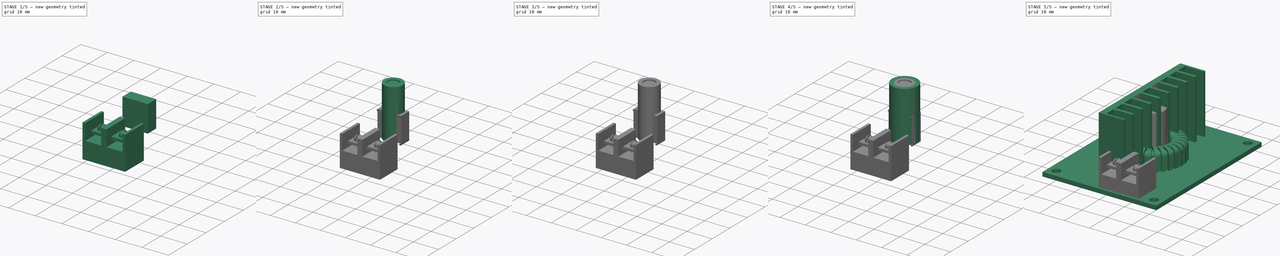
[diagram: build sequence overview — one tinted view per stage of 5, left to right]
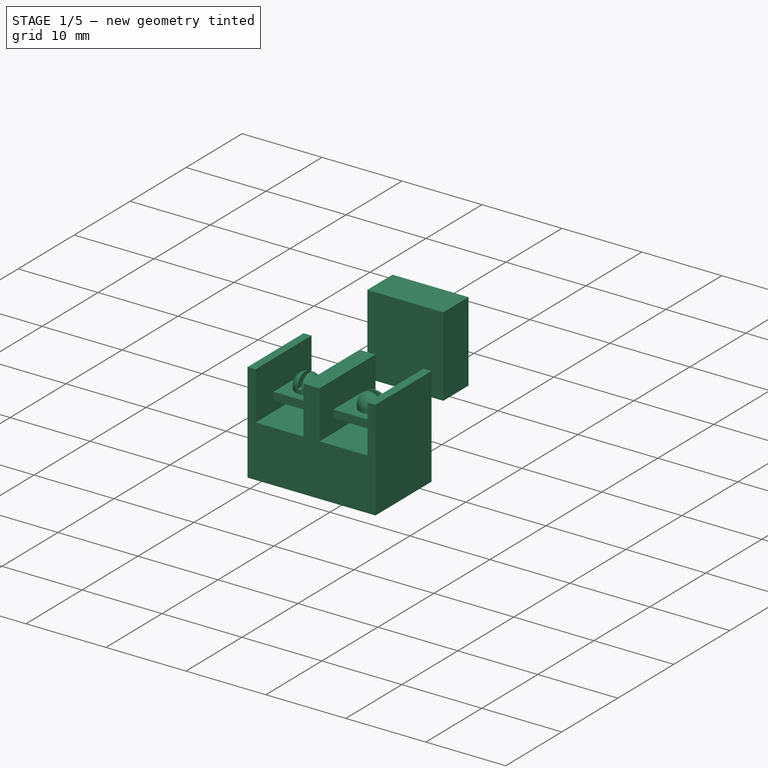
[diagram: stage 1 of 5 — iso view after this stage's code; geometry added in this stage tinted green]
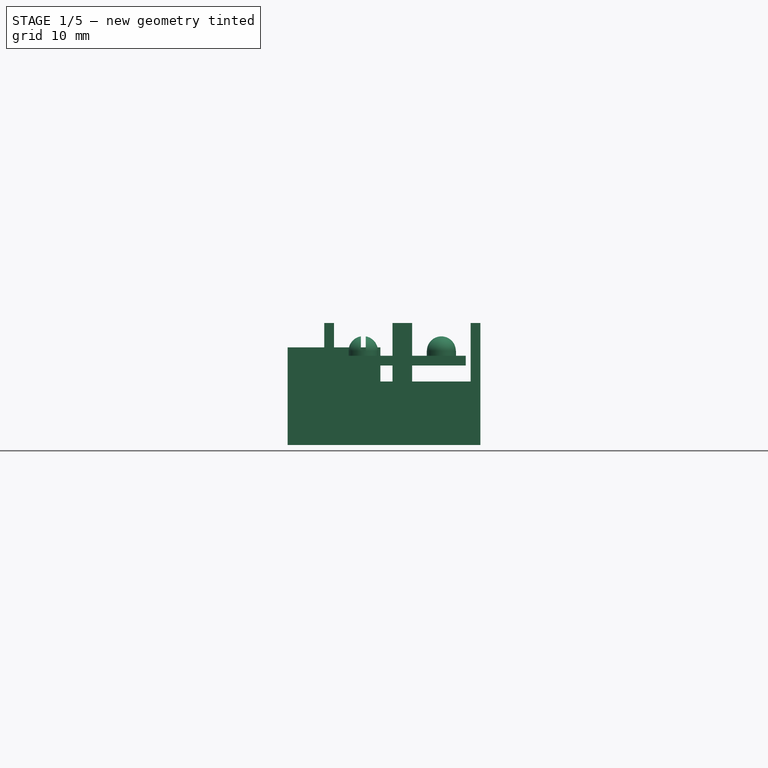
[diagram: stage 1 of 5 — front view after this stage's code; geometry added in this stage tinted green]
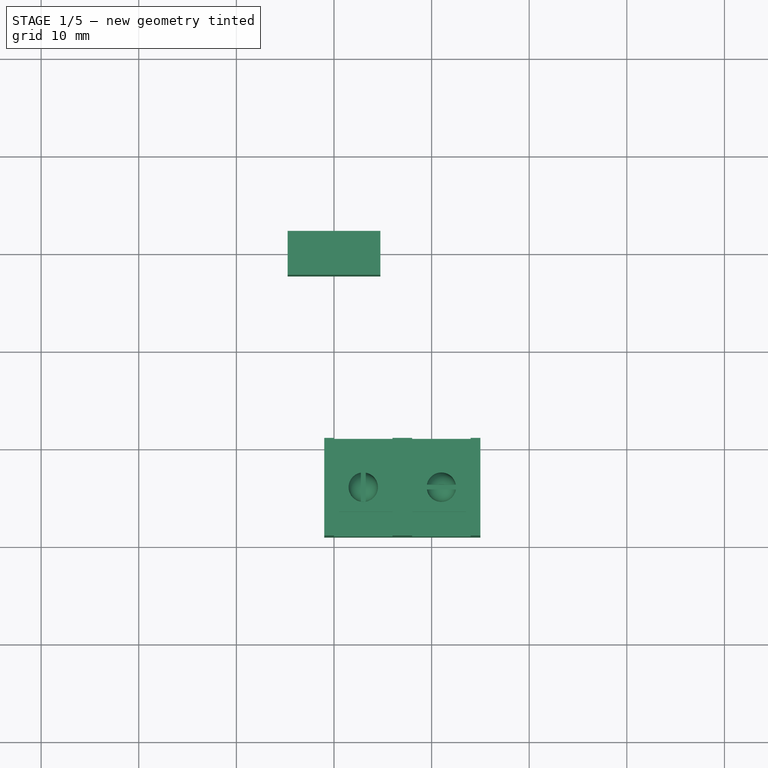
[diagram: stage 1 of 5 — top view after this stage's code; geometry added in this stage tinted green]
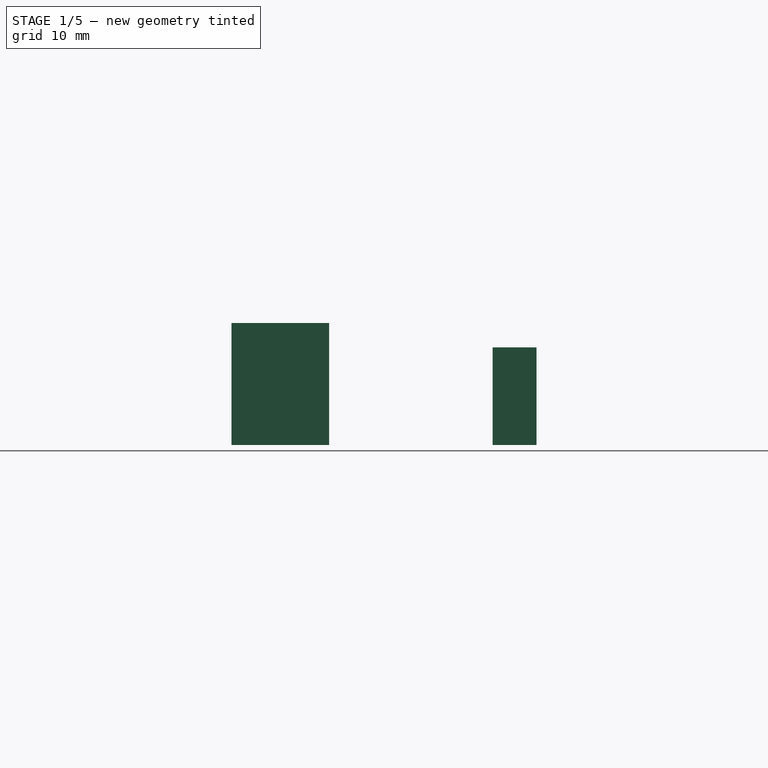
[diagram: stage 1 of 5 — right view after this stage's code; geometry added in this stage tinted green]
FCSTD DOCUMENT  (FreeCAD 0.18R4 (GitTag))
Label: SZBK07
License: CreativeCommons Attribution-NonCommercial
LicenseURL: http://creativecommons.org/licenses/by-nc/4.0/
objects: Sketcher::SketchObject×54, PartDesign::Pad×29, PartDesign::Pocket×25, PartDesign::Body×23, App::Part×11, PartDesign::Fillet×8, PartDesign::ShapeBinder×2, PartDesign::PolarPattern×1
note: 196 computed .brp shape members not serialized (recipe doc carries the construction recipe); baked Part::Feature solids carry a one-line shape summary decoded from their .brp

FEATURE [Sketcher::SketchObject] Sketch062
  MapMode = 5
  Support = -> [XY_Plane038]
  sketch-geometry (4):
    g0: LineSegment StartX=-4.75 StartY=2.25 StartZ=0 EndX=4.75 EndY=2.25 EndZ=0
    g1: LineSegment StartX=4.75 StartY=2.25 StartZ=0 EndX=4.75 EndY=-2.25 EndZ=0
    g2: LineSegment StartX=4.75 StartY=-2.25 StartZ=0 EndX=-4.75 EndY=-2.25 EndZ=0
    g3: LineSegment StartX=-4.75 StartY=-2.25 StartZ=0 EndX=-4.75 EndY=2.25 EndZ=0
  constraints (10):
    c: Coincident(g0,g1)
    c: Coincident(g1,g2)
    c: Coincident(g2,g3)
    c: Coincident(g3,g0)
    c: Horizontal(g2)
    c: Vertical(g3)
    c: Symmetric(g0,g0,g-2)
    c: Symmetric(g0,g1,g-1)
    c: DistanceX(g0,g0) = 9.5
    c: DistanceY(g3,g3) = 4.5
FEATURE [PartDesign::Pad] Pad030  label="3296 Potentiometer Baseblock002"
  Length = 10
  Length2 = 100
  Profile = -> Sketch062
  Type = 0
FEATURE [PartDesign::Body] Body025  label="Screwhead002"
  Group = -> [Sketch061,Pad029,Sketch060,Pocket022]
  Origin = -> Origin038
  Tip = -> Pocket022
FEATURE [PartDesign::Body] Body026  label="Shell002"
  Group = -> [Sketch062,Pad030,Sketch064,Pad031,Sketch063,Pad032]
  Origin = -> Origin039
  Tip = -> Pad032
FEATURE [App::Part] Part012  label="3296 Potentiometer CC"
  Group = -> [Body026,Body025]
  Origin = -> Origin037
  Placement = pos=(-10,-21.5,2.15) rot=(0,0,1;3.14159rad)
FEATURE [Sketcher::SketchObject] Sketch065
  MapMode = 5
  Support = -> [XY_Plane041]
  sketch-geometry (4):
    g0: LineSegment StartX=-1 StartY=-29 StartZ=0 EndX=15 EndY=-29 EndZ=0
    g1: LineSegment StartX=15 StartY=-29 StartZ=0 EndX=15 EndY=-19 EndZ=0
    g2: LineSegment StartX=15 StartY=-19 StartZ=0 EndX=-1 EndY=-19 EndZ=0
    g3: LineSegment StartX=-1 StartY=-19 StartZ=0 EndX=-1 EndY=-29 EndZ=0
  constraints (12):
    c: Coincident(g0,g1)
    c: Coincident(g1,g2)
    c: Coincident(g2,g3)
    c: Coincident(g3,g0)
    c: Horizontal(g0)
    c: Horizontal(g2)
    c: Vertical(g1)
    c: Vertical(g3)
    c: DistanceX(g2,g2) = 16
    c: DistanceY(g1,g1) = 10
    c: DistanceX(g2,g-1) = 1
    c: DistanceY(g2,g-1) = 19
FEATURE [PartDesign::Pad] Pad033
  Length = 12.5
  Length2 = 100
  Profile = -> Sketch065
  Type = 0
FEATURE [Sketcher::SketchObject] Sketch066
  MapMode = 5
  Placement = pos=(0,0,12.5) rot=(0,0,1;0rad)
  Support = -> [Pad033]
  sketch-geometry (8):
    g0: LineSegment StartX=0 StartY=-29 StartZ=0 EndX=6 EndY=-29 EndZ=0
    g1: LineSegment StartX=6 StartY=-29 StartZ=0 EndX=6 EndY=-19 EndZ=0
    g2: LineSegment StartX=6 StartY=-19 StartZ=0 EndX=0 EndY=-19 EndZ=0
    g3: LineSegment StartX=0 StartY=-19 StartZ=0 EndX=0 EndY=-29 EndZ=0
    g4: LineSegment StartX=14 StartY=-19 StartZ=0 EndX=8 EndY=-19 EndZ=0
    g5: LineSegment StartX=8 StartY=-19 StartZ=0 EndX=8 EndY=-29 EndZ=0
    g6: LineSegment StartX=8 StartY=-29 StartZ=0 EndX=14 EndY=-29 EndZ=0
    g7: LineSegment StartX=14 StartY=-29 StartZ=0 EndX=14 EndY=-19 EndZ=0
  constraints (24):
    c: Coincident(g0,g1)
    c: Coincident(g1,g2)
    c: Coincident(g2,g3)
    c: Coincident(g3,g0)
    c: Horizontal(g0)
    c: Horizontal(g2)
    c: Vertical(g1)
    c: Vertical(g3)
    c: PointOnObject(g0,g-2)
    c: Coincident(g4,g5)
    c: Coincident(g5,g6)
    c: Coincident(g6,g7)
    c: Coincident(g7,g4)
    c: Horizontal(g4)
    c: Horizontal(g6)
    c: Vertical(g5)
    c: Vertical(g7)
    c: Horizontal(g1,g4)
    c: Equal(g4,g2)
    c: DistanceX(g2,g4) = 14
    c: DistanceX(g1,g4) = 2
    c: Equal(g1,g5)
    c: DistanceY(g3,g3) = 10
    c: DistanceY(g2,g-1) = 19
FEATURE [PartDesign::Pocket] Pocket
  BaseFeature = -> Pad033
  Length = 6
  Length2 = 100
  Profile = -> Sketch066
  Type = 0
FEATURE [PartDesign::Body] Body027  label="Block"
  Group = -> [Sketch065,Pad033,Sketch066,Pocket]
  Origin = -> Origin041
  Placement = pos=(0,0,1.65) rot=(0,0,1;0rad)
  Tip = -> Pocket
FEATURE [PartDesign::ShapeBinder] CopyPocket
  Placement = pos=(0,0,-6) rot=(0,0,1;0rad)
  TraceSupport = false
FEATURE [Sketcher::SketchObject] Sketch067
  AttachmentOffset = pos=(0,0,1.65) rot=(0,0,1;0rad)
  MapMode = 5
  Placement = pos=(0,0,8.15) rot=(0,0,1;0rad)
  Support = -> [CopyPocket]
  sketch-geometry (4):
    g0: LineSegment StartX=0.5 StartY=-26.5 StartZ=0 EndX=13.5 EndY=-26.5 EndZ=0
    g1: LineSegment StartX=13.5 StartY=-21.5 StartZ=0 EndX=0.5 EndY=-21.5 EndZ=0
    g2: LineSegment StartX=0.5 StartY=-21.5 StartZ=0 EndX=0.5 EndY=-26.5 EndZ=0
    g3: LineSegment StartX=13.5 StartY=-26.5 StartZ=0 EndX=13.5 EndY=-21.5 EndZ=0
  constraints (12):
    c: Coincident(g1,g2)
    c: Coincident(g2,g0)
    c: Horizontal(g0)
    c: Horizontal(g1)
    c: Vertical(g2)
    c: Vertical(g3)
    c: DistanceX(g-1,g1) = 0.5
    c: DistanceY(g0,g-1) = 26.5
    c: Coincident(g1,g3)
    c: Coincident(g0,g3)
    c: DistanceY(g3,g3) = 5
    c: DistanceX(g1,g1) = 13
FEATURE [PartDesign::Pad] Pad034
  Length = 1
  Length2 = 100
  Placement = pos=(0,0,-6) rot=(0,0,1;0rad)
  Profile = -> Sketch067
  Type = 0
FEATURE [Sketcher::SketchObject] Sketch068
  MapMode = 5
  Placement = pos=(0,0,9.15) rot=(0,0,1;0rad)
  Support = -> [Pad034]
  sketch-geometry (2):
    g0: Circle CenterX=3 CenterY=-24 CenterZ=0 NormalX=0 NormalY=0 NormalZ=1 AngleXU=0 Radius=1.5
    g1: Circle CenterX=11 CenterY=-24 CenterZ=0 NormalX=0 NormalY=0 NormalZ=1 AngleXU=0 Radius=1.5
  constraints (6):
    c: Horizontal(g0,g1)
    c: Equal(g1,g0)
    c: DistanceX(g0,g1) = 8
    c: DistanceY(g0,g-1) = 24
    c: DistanceX(g-1,g0) = 3
    c: Radius(g1) = 1.5
FEATURE [PartDesign::Pad] Pad035
  BaseFeature = -> Pad034
  Length = 2
  Length2 = 100
  Placement = pos=(0,0,-6) rot=(0,0,1;0rad)
  Profile = -> Sketch068
  Type = 0
FEATURE [PartDesign::Fillet] Fillet009
  Base = -> Pad035 [Edge16,Edge18]
  BaseFeature = -> Pad035
  Placement = pos=(0,0,-6) rot=(0,0,1;0rad)
  Radius = 1.5
FEATURE [Sketcher::SketchObject] Sketch069
  ExternalGeometry = -> [Fillet009]
  MapMode = 5
  Placement = pos=(0,0,11.15) rot=(0,0,1;0rad)
  Support = -> [Fillet009]
  sketch-geometry (10):
    g0: LineSegment StartX=2.75 StartY=-26 StartZ=0 EndX=3.25 EndY=-26 EndZ=0
    g1: LineSegment StartX=3.25 StartY=-26 StartZ=0 EndX=3.25 EndY=-22 EndZ=0
    g2: LineSegment StartX=3.25 StartY=-22 StartZ=0 EndX=2.75 EndY=-22 EndZ=0
    g3: LineSegment StartX=2.75 StartY=-22 StartZ=0 EndX=2.75 EndY=-26 EndZ=0
    g4: LineSegment StartX=9 StartY=-24.25 StartZ=0 EndX=13 EndY=-24.25 EndZ=0
    g5: LineSegment StartX=13 StartY=-24.25 StartZ=0 EndX=13 EndY=-23.75 EndZ=0
    g6: LineSegment StartX=13 StartY=-23.75 StartZ=0 EndX=9 EndY=-23.75 EndZ=0
    g7: LineSegment StartX=9 StartY=-23.75 StartZ=0 EndX=9 EndY=-24.25 EndZ=0
    g8: LineSegment [constr] StartX=2.75 StartY=-22 StartZ=0 EndX=3.25 EndY=-26 EndZ=0
    g9: LineSegment [constr] StartX=13 StartY=-23.75 StartZ=0 EndX=9 EndY=-24.25 EndZ=0
  constraints (26):
    c: Coincident(g0,g1)
    c: Coincident(g1,g2)
    c: Coincident(g2,g3)
    c: Coincident(g3,g0)
    c: Horizontal(g0)
    c: Horizontal(g2)
    c: Vertical(g1)
    c: Vertical(g3)
    c: Coincident(g4,g5)
    c: Coincident(g5,g6)
    c: Coincident(g6,g7)
    c: Coincident(g7,g4)
    c: Horizontal(g4)
    c: Horizontal(g6)
    c: Vertical(g5)
    c: Vertical(g7)
    c: Equal(g3,g6)
    c: Equal(g5,g2)
    c: DistanceX(g2,g2) = 0.5
    c: Coincident(g8,g2)
    c: Coincident(g8,g0)
    c: Coincident(g9,g5)
    c: Coincident(g9,g4)
    c: Symmetric(g0,g2,g-3)
    c: Symmetric(g5,g4,g-4)
    c: DistanceX(g6,g6) = 4
FEATURE [PartDesign::Pocket] Pocket023
  BaseFeature = -> Fillet009
  Length = 1.5
  Length2 = 100
  Placement = pos=(0,0,-6) rot=(0,0,1;0rad)
  Profile = -> Sketch069
  Type = 0
FEATURE [PartDesign::Body] Body028  label="Terminal Block Screws"
  Group = -> [CopyPocket,Sketch067,Pad034,Sketch068,Pad035,Fillet009,Sketch069,Pocket023]
  Origin = -> Origin042
  Tip = -> Pocket023
FEATURE [App::Part] Part013  label="Terminal Block IN"
  Group = -> [Body027,Body028]
  Origin = -> Origin040
FEATURE [PartDesign::ShapeBinder] CopyPocket001
  Placement = pos=(0,0,-6) rot=(0,0,1;0rad)
  TraceSupport = false
FEATURE [Sketcher::SketchObject] Sketch072
  MapMode = 5
  Support = -> [XY_Plane045]
  sketch-geometry (4):
    g0: LineSegment StartX=-1 StartY=-29 StartZ=0 EndX=15 EndY=-29 EndZ=0
    g1: LineSegment StartX=15 StartY=-29 StartZ=0 EndX=15 EndY=-19 EndZ=0
    g2: LineSegment StartX=15 StartY=-19 StartZ=0 EndX=-1 EndY=-19 EndZ=0
    g3: LineSegment StartX=-1 StartY=-19 StartZ=0 EndX=-1 EndY=-29 EndZ=0
  constraints (12):
    c: Coincident(g0,g1)
    c: Coincident(g1,g2)
    c: Coincident(g2,g3)
    c: Coincident(g3,g0)
    c: Horizontal(g0)
    c: Horizontal(g2)
    c: Vertical(g1)
    c: Vertical(g3)
    c: DistanceX(g2,g2) = 16
    c: DistanceY(g1,g1) = 10
    c: DistanceX(g2,g-1) = 1
    c: DistanceY(g2,g-1) = 19
FEATURE [PartDesign::Pad] Pad036
  Length = 12.5
  Length2 = 100
  Profile = -> Sketch072
  Type = 0
FEATURE [Sketcher::SketchObject] Sketch071
  MapMode = 5
  Placement = pos=(0,0,12.5) rot=(0,0,1;0rad)
  Support = -> [Pad036]
  sketch-geometry (8):
    g0: LineSegment StartX=0 StartY=-29 StartZ=0 EndX=6 EndY=-29 EndZ=0
    g1: LineSegment StartX=6 StartY=-29 StartZ=0 EndX=6 EndY=-19 EndZ=0
    g2: LineSegment StartX=6 StartY=-19 StartZ=0 EndX=0 EndY=-19 EndZ=0
    g3: LineSegment StartX=0 StartY=-19 StartZ=0 EndX=0 EndY=-29 EndZ=0
    g4: LineSegment StartX=14 StartY=-19 StartZ=0 EndX=8 EndY=-19 EndZ=0
    g5: LineSegment StartX=8 StartY=-19 StartZ=0 EndX=8 EndY=-29 EndZ=0
    g6: LineSegment StartX=8 StartY=-29 StartZ=0 EndX=14 EndY=-29 EndZ=0
    g7: LineSegment StartX=14 StartY=-29 StartZ=0 EndX=14 EndY=-19 EndZ=0
  constraints (24):
    c: Coincident(g0,g1)
    c: Coincident(g1,g2)
    c: Coincident(g2,g3)
    c: Coincident(g3,g0)
    c: Horizontal(g0)
    c: Horizontal(g2)
    c: Vertical(g1)
    c: Vertical(g3)
    c: PointOnObject(g0,g-2)
    c: Coincident(g4,g5)
    c: Coincident(g5,g6)
    c: Coincident(g6,g7)
    c: Coincident(g7,g4)
    c: Horizontal(g4)
    c: Horizontal(g6)
    c: Vertical(g5)
    c: Vertical(g7)
    c: Horizontal(g1,g4)
    c: Equal(g4,g2)
    c: DistanceX(g2,g4) = 14
    c: DistanceX(g1,g4) = 2
    c: Equal(g1,g5)
    c: DistanceY(g3,g3) = 10
    c: DistanceY(g2,g-1) = 19
FEATURE [PartDesign::Pocket] Pocket024
  BaseFeature = -> Pad036
  Length = 6
  Length2 = 100
  Profile = -> Sketch071
  Type = 0
FEATURE [PartDesign::Body] Body030  label="Block001"
  Group = -> [Sketch072,Pad036,Sketch071,Pocket024]
  Origin = -> Origin045
  Placement = pos=(0,0,1.65) rot=(0,0,1;0rad)
  Tip = -> Pocket024
FEATURE [Sketcher::SketchObject] Sketch074
  AttachmentOffset = pos=(0,0,1.65) rot=(0,0,1;0rad)
  MapMode = 5
  Placement = pos=(0,0,8.15) rot=(0,0,1;0rad)
  Support = -> [CopyPocket001]
  sketch-geometry (4):
    g0: LineSegment StartX=0.5 StartY=-26.5 StartZ=0 EndX=13.5 EndY=-26.5 EndZ=0
    g1: LineSegment StartX=13.5 StartY=-21.5 StartZ=0 EndX=0.5 EndY=-21.5 EndZ=0
    g2: LineSegment StartX=0.5 StartY=-21.5 StartZ=0 EndX=0.5 EndY=-26.5 EndZ=0
    g3: LineSegment StartX=13.5 StartY=-26.5 StartZ=0 EndX=13.5 EndY=-21.5 EndZ=0
  constraints (12):
    c: Coincident(g1,g2)
    c: Coincident(g2,g0)
    c: Horizontal(g0)
    c: Horizontal(g1)
    c: Vertical(g2)
    c: Vertical(g3)
    c: DistanceX(g-1,g1) = 0.5
    c: DistanceY(g0,g-1) = 26.5
    c: Coincident(g1,g3)
    c: Coincident(g0,g3)
    c: DistanceY(g3,g3) = 5
    c: DistanceX(g1,g1) = 13
FEATURE [PartDesign::Pad] Pad037
  Length = 1
  Length2 = 100
  Placement = pos=(0,0,-6) rot=(0,0,1;0rad)
  Profile = -> Sketch074
  Type = 0
FEATURE [Sketcher::SketchObject] Sketch070
  MapMode = 5
  Placement = pos=(0,0,9.15) rot=(0,0,1;0rad)
  Support = -> [Pad037]
  sketch-geometry (2):
    g0: Circle CenterX=3 CenterY=-24 CenterZ=0 NormalX=0 NormalY=0 NormalZ=1 AngleXU=0 Radius=1.5
    g1: Circle CenterX=11 CenterY=-24 CenterZ=0 NormalX=0 NormalY=0 NormalZ=1 AngleXU=0 Radius=1.5
  constraints (6):
    c: Horizontal(g0,g1)
    c: Equal(g1,g0)
    c: DistanceX(g0,g1) = 8
    c: DistanceY(g0,g-1) = 24
    c: DistanceX(g-1,g0) = 3
    c: Radius(g1) = 1.5
FEATURE [PartDesign::Pad] Pad038
  BaseFeature = -> Pad037
  Length = 2
  Length2 = 100
  Placement = pos=(0,0,-6) rot=(0,0,1;0rad)
  Profile = -> Sketch070
  Type = 0
FEATURE [PartDesign::Fillet] Fillet010
  Base = -> Pad038 [Edge16,Edge18]
  BaseFeature = -> Pad038
  Placement = pos=(0,0,-6) rot=(0,0,1;0rad)
  Radius = 1.5
FEATURE [Sketcher::SketchObject] Sketch073
  ExternalGeometry = -> [Fillet010]
  MapMode = 5
  Placement = pos=(0,0,11.15) rot=(0,0,1;0rad)
  Support = -> [Fillet010]
  sketch-geometry (10):
    g0: LineSegment StartX=2.75 StartY=-26 StartZ=0 EndX=3.25 EndY=-26 EndZ=0
    g1: LineSegment StartX=3.25 StartY=-26 StartZ=0 EndX=3.25 EndY=-22 EndZ=0
    g2: LineSegment StartX=3.25 StartY=-22 StartZ=0 EndX=2.75 EndY=-22 EndZ=0
    g3: LineSegment StartX=2.75 StartY=-22 StartZ=0 EndX=2.75 EndY=-26 EndZ=0
    g4: LineSegment StartX=9 StartY=-24.25 StartZ=0 EndX=13 EndY=-24.25 EndZ=0
    g5: LineSegment StartX=13 StartY=-24.25 StartZ=0 EndX=13 EndY=-23.75 EndZ=0
    g6: LineSegment StartX=13 StartY=-23.75 StartZ=0 EndX=9 EndY=-23.75 EndZ=0
    g7: LineSegment StartX=9 StartY=-23.75 StartZ=0 EndX=9 EndY=-24.25 EndZ=0
    g8: LineSegment [constr] StartX=2.75 StartY=-22 StartZ=0 EndX=3.25 EndY=-26 EndZ=0
    g9: LineSegment [constr] StartX=13 StartY=-23.75 StartZ=0 EndX=9 EndY=-24.25 EndZ=0
  constraints (26):
    c: Coincident(g0,g1)
    c: Coincident(g1,g2)
    c: Coincident(g2,g3)
    c: Coincident(g3,g0)
    c: Horizontal(g0)
    c: Horizontal(g2)
    c: Vertical(g1)
    c: Vertical(g3)
    c: Coincident(g4,g5)
    c: Coincident(g5,g6)
    c: Coincident(g6,g7)
    c: Coincident(g7,g4)
    c: Horizontal(g4)
    c: Horizontal(g6)
    c: Vertical(g5)
    c: Vertical(g7)
    c: Equal(g3,g6)
    c: Equal(g5,g2)
    c: DistanceX(g2,g2) = 0.5
    c: Coincident(g8,g2)
    c: Coincident(g8,g0)
    c: Coincident(g9,g5)
    c: Coincident(g9,g4)
    c: Symmetric(g0,g2,g-3)
    c: Symmetric(g5,g4,g-4)
    c: DistanceX(g6,g6) = 4
FEATURE [PartDesign::Pocket] Pocket025
  BaseFeature = -> Fillet010
  Length = 1.5
  Length2 = 100
  Placement = pos=(0,0,-6) rot=(0,0,1;0rad)
  Profile = -> Sketch073
  Type = 0
FEATURE [PartDesign::Body] Body029  label="Terminal Block Screws001"
  Group = -> [CopyPocket001,Sketch074,Pad037,Sketch070,Pad038,Fillet010,Sketch073,Pocket025]
  Origin = -> Origin043
  Tip = -> Pocket025
FEATURE [App::Part] Part014  label="Terminal Block OUT"
  Group = -> [Body030,Body029]
  Origin = -> Origin044
  Placement = pos=(-7,48.5,0) rot=(0,0,1;0rad)
FEATURE [App::Part] Part  label="SZBK07"
  Group = -> [Body,Body001,Body002,Part007,Part003,Part008,Part009,Part010,Part011,Part002,Part012,Part013,Part014]
  Origin = -> Origin
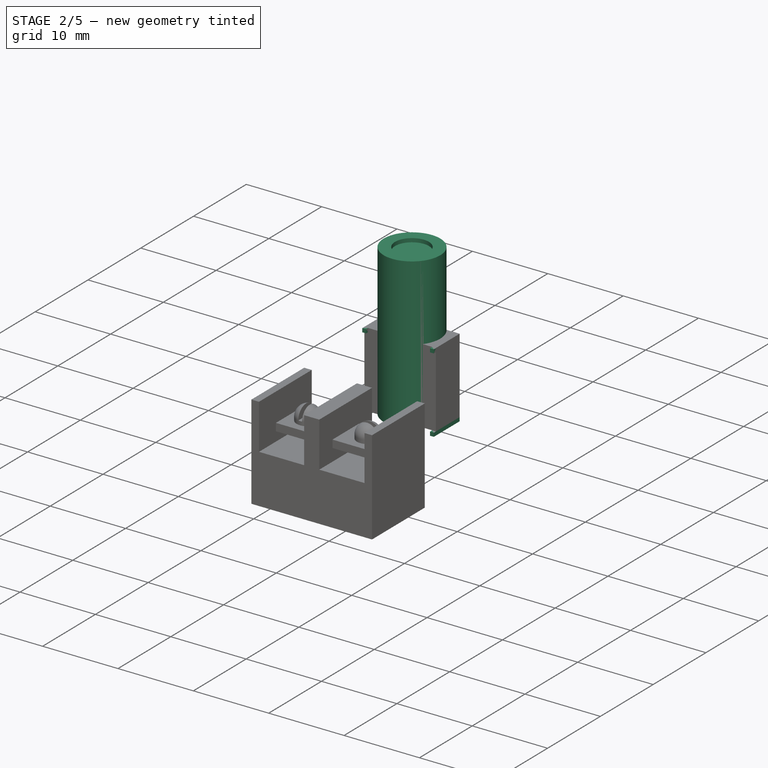
[diagram: stage 2 of 5 — iso view after this stage's code; geometry added in this stage tinted green]
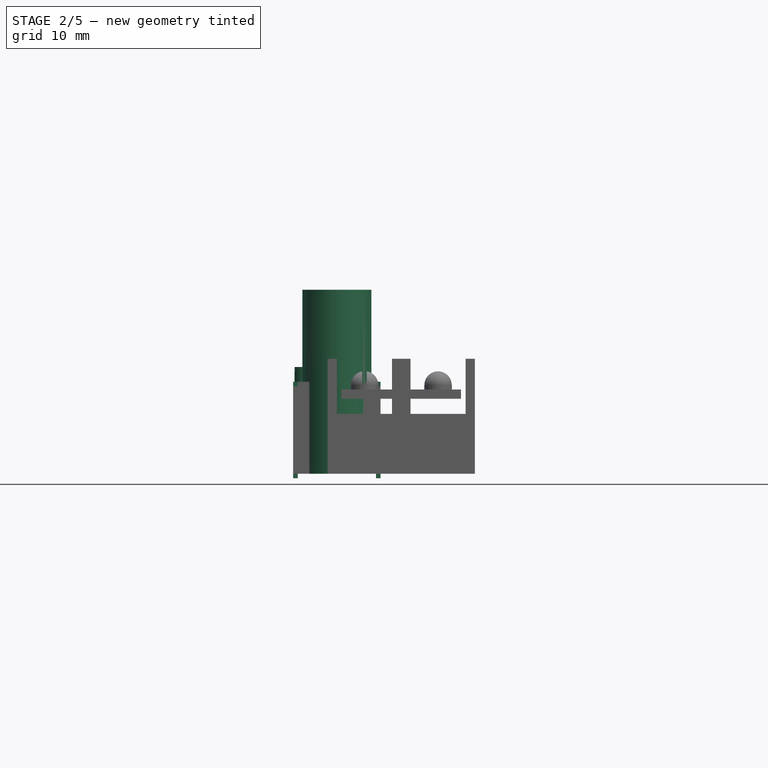
[diagram: stage 2 of 5 — front view after this stage's code; geometry added in this stage tinted green]
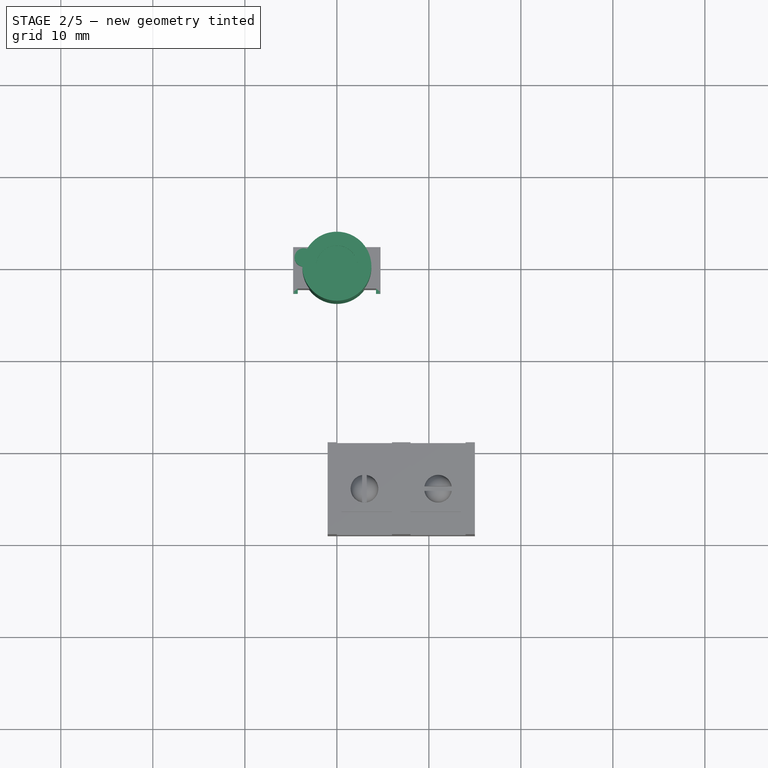
[diagram: stage 2 of 5 — top view after this stage's code; geometry added in this stage tinted green]
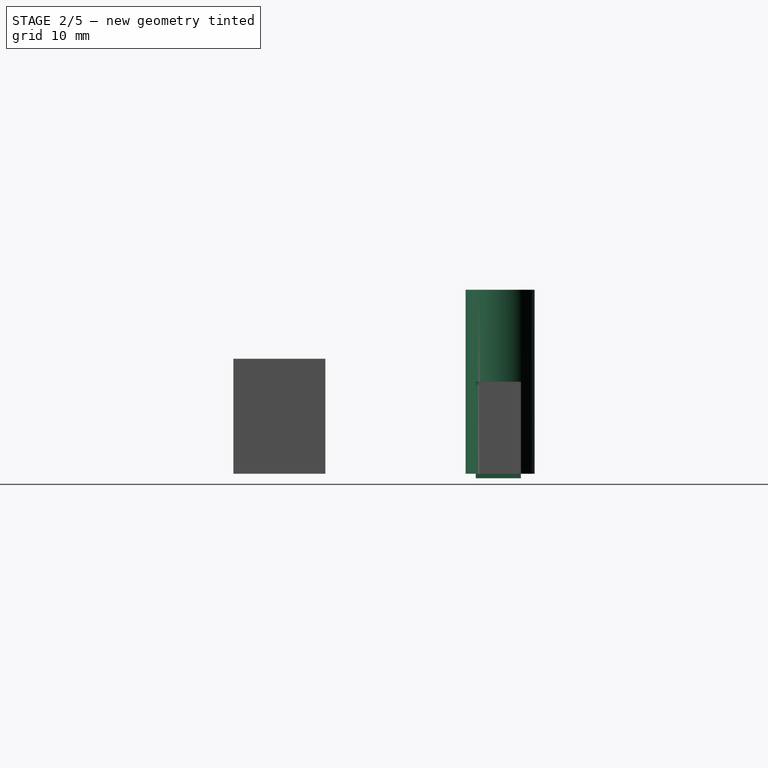
[diagram: stage 2 of 5 — right view after this stage's code; geometry added in this stage tinted green]
FEATURE [PartDesign::Body] Body022  label="Capacitor Shell003"
  Group = -> [Sketch053,Pad026,Sketch054,Pocket018,Sketch050,Pocket016,Fillet007]
  Origin = -> Origin031
  Tip = -> Fillet007
FEATURE [App::Part] Part010  label="Capacitor RM"
  Group = -> [Body022,Body021]
  Origin = -> Origin033
  Placement = pos=(0,-9.5,1.65) rot=(0,0,1;0rad)
FEATURE [Sketcher::SketchObject] Sketch055
  MapMode = 5
  Support = -> [XY_Plane036]
  sketch-geometry (1):
    g0: Circle CenterX=0 CenterY=0 CenterZ=0 NormalX=0 NormalY=0 NormalZ=1 AngleXU=0 Radius=3.75
  constraints (2):
    c: Coincident(g0,g-1)
    c: Radius(g0) = 3.75
FEATURE [PartDesign::Pad] Pad027  label="Capacitor Shell Baseblock004"
  Length = 20
  Length2 = 100
  Profile = -> Sketch055
  Type = 0
FEATURE [Sketcher::SketchObject] Sketch056
  MapMode = 5
  Placement = pos=(0,0,20) rot=(0,0,1;0rad)
  Support = -> [Pad027]
  sketch-geometry (1):
    g0: Circle CenterX=0 CenterY=0 CenterZ=0 NormalX=0 NormalY=0 NormalZ=1 AngleXU=0 Radius=2.25
  constraints (2):
    c: Coincident(g0,g-1)
    c: Radius(g0) = 2.25
FEATURE [PartDesign::Pocket] Pocket021  label="Top Hole004"
  BaseFeature = -> Pad027
  Length = 0.5
  Length2 = 100
  Profile = -> Sketch056
  Type = 0
FEATURE [PartDesign::Body] Body023  label="Capacitor Shell004"
  Group = -> [Sketch055,Pad027,Sketch056,Pocket021,Sketch057,Pocket019,Fillet008]
  Origin = -> Origin035
  Tip = -> Fillet008
FEATURE [Sketcher::SketchObject] Sketch059
  MapMode = 5
  Support = -> [XY_Plane035]
  sketch-geometry (1):
    g0: Circle CenterX=0 CenterY=0 CenterZ=0 NormalX=0 NormalY=0 NormalZ=1 AngleXU=0 Radius=3
  constraints (2):
    c: Coincident(g0,g-1)
    c: Radius(g0) = 3
FEATURE [PartDesign::Pad] Pad028  label="Capacitor Cap Baseblock004"
  Length = 0.5
  Length2 = 100
  Profile = -> Sketch059
  Type = 0
FEATURE [PartDesign::Body] Body024  label="Capacitor Cap004"
  Group = -> [Sketch059,Pad028,Sketch058,Pocket020]
  Origin = -> Origin034
  Placement = pos=(0,0,19) rot=(0,0,1;0rad)
  Tip = -> Pocket020
FEATURE [App::Part] Part011  label="Capacitor RR"
  Group = -> [Body023,Body024]
  Origin = -> Origin036
  Placement = pos=(8,-9.5,1.65) rot=(0,0,1;0rad)
FEATURE [Sketcher::SketchObject] Sketch013
  AttachmentOffset = pos=(0,0,10) rot=(0,0,1;0rad)
  MapMode = 5
  Placement = pos=(0,0,10) rot=(0,0,1;0rad)
  Support = -> [XY_Plane008]
  sketch-geometry (1):
    g0: Circle CenterX=-3.6 CenterY=1.1 CenterZ=0 NormalX=0 NormalY=0 NormalZ=1 AngleXU=0 Radius=1
  constraints (3):
    c: Radius(g0) = 1
    c: DistanceX(g0,g-1) = 3.6
    c: DistanceY(g-1,g0) = 1.1
FEATURE [Sketcher::SketchObject] Sketch015
  MapMode = 5
  Support = -> [XY_Plane007]
  sketch-geometry (4):
    g0: LineSegment StartX=-4.75 StartY=2.25 StartZ=0 EndX=4.75 EndY=2.25 EndZ=0
    g1: LineSegment StartX=4.75 StartY=2.25 StartZ=0 EndX=4.75 EndY=-2.25 EndZ=0
    g2: LineSegment StartX=4.75 StartY=-2.25 StartZ=0 EndX=-4.75 EndY=-2.25 EndZ=0
    g3: LineSegment StartX=-4.75 StartY=-2.25 StartZ=0 EndX=-4.75 EndY=2.25 EndZ=0
  constraints (10):
    c: Coincident(g0,g1)
    c: Coincident(g1,g2)
    c: Coincident(g2,g3)
    c: Coincident(g3,g0)
    c: Horizontal(g2)
    c: Vertical(g3)
    c: Symmetric(g0,g0,g-2)
    c: Symmetric(g0,g1,g-1)
    c: DistanceX(g0,g0) = 9.5
    c: DistanceY(g3,g3) = 4.5
FEATURE [PartDesign::Pad] Pad007  label="3296 Potentiometer Baseblock001"
  Length = 10
  Length2 = 100
  Profile = -> Sketch015
  Type = 0
FEATURE [Sketcher::SketchObject] Sketch014
  MapMode = 5
  Placement = pos=(0,-2.25,0) rot=(1,0,0;1.5708rad)
  Support = -> [Pad007]
  sketch-geometry (8):
    g0: LineSegment StartX=-4.75 StartY=10 StartZ=0 EndX=-4.25 EndY=10 EndZ=0
    g1: LineSegment StartX=-4.25 StartY=10 StartZ=0 EndX=-4.25 EndY=9.5 EndZ=0
    g2: LineSegment StartX=-4.25 StartY=9.5 StartZ=0 EndX=-4.75 EndY=9.5 EndZ=0
    g3: LineSegment StartX=-4.75 StartY=9.5 StartZ=0 EndX=-4.75 EndY=10 EndZ=0
    g4: LineSegment StartX=4.75 StartY=10 StartZ=0 EndX=4.25 EndY=10 EndZ=0
    g5: LineSegment StartX=4.25 StartY=10 StartZ=0 EndX=4.25 EndY=9.5 EndZ=0
    g6: LineSegment StartX=4.25 StartY=9.5 StartZ=0 EndX=4.75 EndY=9.5 EndZ=0
    g7: LineSegment StartX=4.75 StartY=9.5 StartZ=0 EndX=4.75 EndY=10 EndZ=0
  constraints (23):
    c: Coincident(g0,g1)
    c: Coincident(g1,g2)
    c: Coincident(g2,g3)
    c: Coincident(g3,g0)
    c: Horizontal(g0)
    c: Horizontal(g2)
    c: Vertical(g1)
    c: Vertical(g3)
    c: Coincident(g4,g5)
    c: Coincident(g5,g6)
    c: Coincident(g6,g7)
    c: Coincident(g7,g4)
    c: Horizontal(g4)
    c: Horizontal(g6)
    c: Vertical(g5)
    c: Vertical(g7)
    c: Equal(g2,g6)
    c: Equal(g1,g5)
    c: DistanceX(g0,g0) = 0.5
    c: Symmetric(g0,g4,g-2)
    c: DistanceX(g0,g4) = 9.5
    c: DistanceY(g-1,g4) = 10
    c: Equal(g2,g1)
FEATURE [PartDesign::Pad] Pad008  label="Feet Side001"
  BaseFeature = -> Pad007
  Length = 0.4
  Length2 = 100
  Profile = -> Sketch014
  Type = 0
FEATURE [Sketcher::SketchObject] Sketch017
  MapMode = 5
  Placement = pos=(0,0,0) rot=(1,0,0;3.14159rad)
  Support = -> [Pad008]
  sketch-geometry (8):
    g0: LineSegment StartX=-4.75 StartY=-2.25 StartZ=0 EndX=-4.25 EndY=-2.25 EndZ=0
    g1: LineSegment StartX=-4.25 StartY=-2.25 StartZ=0 EndX=-4.25 EndY=2.65 EndZ=0
    g2: LineSegment StartX=-4.25 StartY=2.65 StartZ=0 EndX=-4.75 EndY=2.65 EndZ=0
    g3: LineSegment StartX=-4.75 StartY=2.65 StartZ=0 EndX=-4.75 EndY=-2.25 EndZ=0
    g4: LineSegment StartX=4.75 StartY=2.65 StartZ=0 EndX=4.25 EndY=2.65 EndZ=0
    g5: LineSegment StartX=4.25 StartY=2.65 StartZ=0 EndX=4.25 EndY=-2.25 EndZ=0
    g6: LineSegment StartX=4.25 StartY=-2.25 StartZ=0 EndX=4.75 EndY=-2.25 EndZ=0
    g7: LineSegment StartX=4.75 StartY=-2.25 StartZ=0 EndX=4.75 EndY=2.65 EndZ=0
  constraints (23):
    c: Coincident(g0,g1)
    c: Coincident(g1,g2)
    c: Coincident(g2,g3)
    c: Coincident(g3,g0)
    c: Horizontal(g0)
    c: Horizontal(g2)
    c: Vertical(g1)
    c: Vertical(g3)
    c: Coincident(g4,g5)
    c: Coincident(g5,g6)
    c: Coincident(g6,g7)
    c: Coincident(g7,g4)
    c: Horizontal(g4)
    c: Horizontal(g6)
    c: Vertical(g5)
    c: Vertical(g7)
    c: Symmetric(g4,g2,g-2)
    c: DistanceX(g2,g4) = 9.5
    c: DistanceY(g3,g3) = 4.9
    c: DistanceX(g2,g2) = 0.5
    c: Equal(g1,g5)
    c: DistanceY(g0,g-1) = 2.25
    c: Equal(g4,g2)
FEATURE [PartDesign::Pad] Pad009  label="3296 Screwhead Baseblock001"
  Length = 1.6
  Length2 = 100
  Profile = -> Sketch013
  Type = 0
FEATURE [Sketcher::SketchObject] Sketch016
  ExternalGeometry = -> [Pad009]
  MapMode = 5
  Placement = pos=(0,0,11.6) rot=(0,0,1;0rad)
  Support = -> [Pad009]
  sketch-geometry (6):
    g0: LineSegment StartX=-4.725 StartY=0.925 StartZ=0 EndX=-2.475 EndY=0.925 EndZ=0
    g1: LineSegment StartX=-2.475 StartY=0.925 StartZ=0 EndX=-2.475 EndY=1.275 EndZ=0
    g2: LineSegment StartX=-2.475 StartY=1.275 StartZ=0 EndX=-4.725 EndY=1.275 EndZ=0
    g3: LineSegment StartX=-4.725 StartY=1.275 StartZ=0 EndX=-4.725 EndY=0.925 EndZ=0
    g4: LineSegment [constr] StartX=-4.725 StartY=1.1 StartZ=0 EndX=-2.475 EndY=1.1 EndZ=0
    g5: LineSegment [constr] StartX=-3.6 StartY=1.275 StartZ=0 EndX=-3.6 EndY=0.925 EndZ=0
  constraints (18):
    c: Coincident(g0,g1)
    c: Coincident(g1,g2)
    c: Coincident(g2,g3)
    c: Coincident(g3,g0)
    c: Horizontal(g0)
    c: Horizontal(g2)
    c: Vertical(g1)
    c: Vertical(g3)
    c: PointOnObject(g4,g3)
    c: Horizontal(g4)
    c: PointOnObject(g5,g0)
    c: Vertical(g5)
    c: Symmetric(g1,g2,g5)
    c: Symmetric(g1,g0,g4)
    c: PointOnObject(g-3,g5)
    c: PointOnObject(g-3,g4)
    c: DistanceX(g2,g2) = 2.25
    c: DistanceY(g1,g1) = 0.35
FEATURE [PartDesign::Pocket] Pocket006  label="Screw Groove001"
  BaseFeature = -> Pad009
  Length = 0.5
  Length2 = 100
  Profile = -> Sketch016
  Type = 0
FEATURE [PartDesign::Body] Body006  label="Screwhead001"
  Group = -> [Sketch013,Pad009,Sketch016,Pocket006]
  Origin = -> Origin009
  Tip = -> Pocket006
FEATURE [PartDesign::Pad] Pad010  label="Feet Bottom001"
  BaseFeature = -> Pad008
  Length = 0.5
  Length2 = 100
  Profile = -> Sketch017
  Type = 0
FEATURE [PartDesign::Body] Body005  label="Shell001"
  Group = -> [Sketch015,Pad007,Sketch014,Pad008,Sketch017,Pad010]
  Origin = -> Origin007
  Tip = -> Pad010
FEATURE [App::Part] Part002  label="3296 Potentiometer CV"
  Group = -> [Body005,Body006]
  Origin = -> Origin008
  Placement = pos=(-10,-27,2.15) rot=(0,0,1;3.14159rad)
FEATURE [Sketcher::SketchObject] Sketch061
  AttachmentOffset = pos=(0,0,10) rot=(0,0,1;0rad)
  MapMode = 5
  Placement = pos=(0,0,10) rot=(0,0,1;0rad)
  Support = -> [XY_Plane037]
  sketch-geometry (1):
    g0: Circle CenterX=-3.6 CenterY=1.1 CenterZ=0 NormalX=0 NormalY=0 NormalZ=1 AngleXU=0 Radius=1
  constraints (3):
    c: Radius(g0) = 1
    c: DistanceX(g0,g-1) = 3.6
    c: DistanceY(g-1,g0) = 1.1
FEATURE [PartDesign::Pad] Pad029  label="3296 Screwhead Baseblock002"
  Length = 1.6
  Length2 = 100
  Profile = -> Sketch061
  Type = 0
FEATURE [Sketcher::SketchObject] Sketch060
  ExternalGeometry = -> [Pad029]
  MapMode = 5
  Placement = pos=(0,0,11.6) rot=(0,0,1;0rad)
  Support = -> [Pad029]
  sketch-geometry (6):
    g0: LineSegment StartX=-4.725 StartY=0.925 StartZ=0 EndX=-2.475 EndY=0.925 EndZ=0
    g1: LineSegment StartX=-2.475 StartY=0.925 StartZ=0 EndX=-2.475 EndY=1.275 EndZ=0
    g2: LineSegment StartX=-2.475 StartY=1.275 StartZ=0 EndX=-4.725 EndY=1.275 EndZ=0
    g3: LineSegment StartX=-4.725 StartY=1.275 StartZ=0 EndX=-4.725 EndY=0.925 EndZ=0
    g4: LineSegment [constr] StartX=-4.725 StartY=1.1 StartZ=0 EndX=-2.475 EndY=1.1 EndZ=0
    g5: LineSegment [constr] StartX=-3.6 StartY=1.275 StartZ=0 EndX=-3.6 EndY=0.925 EndZ=0
  constraints (18):
    c: Coincident(g0,g1)
    c: Coincident(g1,g2)
    c: Coincident(g2,g3)
    c: Coincident(g3,g0)
    c: Horizontal(g0)
    c: Horizontal(g2)
    c: Vertical(g1)
    c: Vertical(g3)
    c: PointOnObject(g4,g3)
    c: Horizontal(g4)
    c: PointOnObject(g5,g0)
    c: Vertical(g5)
    c: Symmetric(g1,g2,g5)
    c: Symmetric(g1,g0,g4)
    c: PointOnObject(g-3,g5)
    c: PointOnObject(g-3,g4)
    c: DistanceX(g2,g2) = 2.25
    c: DistanceY(g1,g1) = 0.35
FEATURE [PartDesign::Pocket] Pocket022  label="Screw Groove002"
  BaseFeature = -> Pad029
  Length = 0.5
  Length2 = 100
  Profile = -> Sketch060
  Type = 0
FEATURE [Sketcher::SketchObject] Sketch064
  MapMode = 5
  Placement = pos=(0,-2.25,0) rot=(1,0,0;1.5708rad)
  Support = -> [Pad030]
  sketch-geometry (8):
    g0: LineSegment StartX=-4.75 StartY=10 StartZ=0 EndX=-4.25 EndY=10 EndZ=0
    g1: LineSegment StartX=-4.25 StartY=10 StartZ=0 EndX=-4.25 EndY=9.5 EndZ=0
    g2: LineSegment StartX=-4.25 StartY=9.5 StartZ=0 EndX=-4.75 EndY=9.5 EndZ=0
    g3: LineSegment StartX=-4.75 StartY=9.5 StartZ=0 EndX=-4.75 EndY=10 EndZ=0
    g4: LineSegment StartX=4.75 StartY=10 StartZ=0 EndX=4.25 EndY=10 EndZ=0
    g5: LineSegment StartX=4.25 StartY=10 StartZ=0 EndX=4.25 EndY=9.5 EndZ=0
    g6: LineSegment StartX=4.25 StartY=9.5 StartZ=0 EndX=4.75 EndY=9.5 EndZ=0
    g7: LineSegment StartX=4.75 StartY=9.5 StartZ=0 EndX=4.75 EndY=10 EndZ=0
  constraints (23):
    c: Coincident(g0,g1)
    c: Coincident(g1,g2)
    c: Coincident(g2,g3)
    c: Coincident(g3,g0)
    c: Horizontal(g0)
    c: Horizontal(g2)
    c: Vertical(g1)
    c: Vertical(g3)
    c: Coincident(g4,g5)
    c: Coincident(g5,g6)
    c: Coincident(g6,g7)
    c: Coincident(g7,g4)
    c: Horizontal(g4)
    c: Horizontal(g6)
    c: Vertical(g5)
    c: Vertical(g7)
    c: Equal(g2,g6)
    c: Equal(g1,g5)
    c: DistanceX(g0,g0) = 0.5
    c: Symmetric(g0,g4,g-2)
    c: DistanceX(g0,g4) = 9.5
    c: DistanceY(g-1,g4) = 10
    c: Equal(g2,g1)
FEATURE [PartDesign::Pad] Pad031  label="Feet Side002"
  BaseFeature = -> Pad030
  Length = 0.4
  Length2 = 100
  Profile = -> Sketch064
  Type = 0
FEATURE [Sketcher::SketchObject] Sketch063
  MapMode = 5
  Placement = pos=(0,0,0) rot=(1,0,0;3.14159rad)
  Support = -> [Pad031]
  sketch-geometry (8):
    g0: LineSegment StartX=-4.75 StartY=-2.25 StartZ=0 EndX=-4.25 EndY=-2.25 EndZ=0
    g1: LineSegment StartX=-4.25 StartY=-2.25 StartZ=0 EndX=-4.25 EndY=2.65 EndZ=0
    g2: LineSegment StartX=-4.25 StartY=2.65 StartZ=0 EndX=-4.75 EndY=2.65 EndZ=0
    g3: LineSegment StartX=-4.75 StartY=2.65 StartZ=0 EndX=-4.75 EndY=-2.25 EndZ=0
    g4: LineSegment StartX=4.75 StartY=2.65 StartZ=0 EndX=4.25 EndY=2.65 EndZ=0
    g5: LineSegment StartX=4.25 StartY=2.65 StartZ=0 EndX=4.25 EndY=-2.25 EndZ=0
    g6: LineSegment StartX=4.25 StartY=-2.25 StartZ=0 EndX=4.75 EndY=-2.25 EndZ=0
    g7: LineSegment StartX=4.75 StartY=-2.25 StartZ=0 EndX=4.75 EndY=2.65 EndZ=0
  constraints (23):
    c: Coincident(g0,g1)
    c: Coincident(g1,g2)
    c: Coincident(g2,g3)
    c: Coincident(g3,g0)
    c: Horizontal(g0)
    c: Horizontal(g2)
    c: Vertical(g1)
    c: Vertical(g3)
    c: Coincident(g4,g5)
    c: Coincident(g5,g6)
    c: Coincident(g6,g7)
    c: Coincident(g7,g4)
    c: Horizontal(g4)
    c: Horizontal(g6)
    c: Vertical(g5)
    c: Vertical(g7)
    c: Symmetric(g4,g2,g-2)
    c: DistanceX(g2,g4) = 9.5
    c: DistanceY(g3,g3) = 4.9
    c: DistanceX(g2,g2) = 0.5
    c: Equal(g1,g5)
    c: DistanceY(g0,g-1) = 2.25
    c: Equal(g4,g2)
FEATURE [PartDesign::Pad] Pad032  label="Feet Bottom002"
  BaseFeature = -> Pad031
  Length = 0.5
  Length2 = 100
  Profile = -> Sketch063
  Type = 0
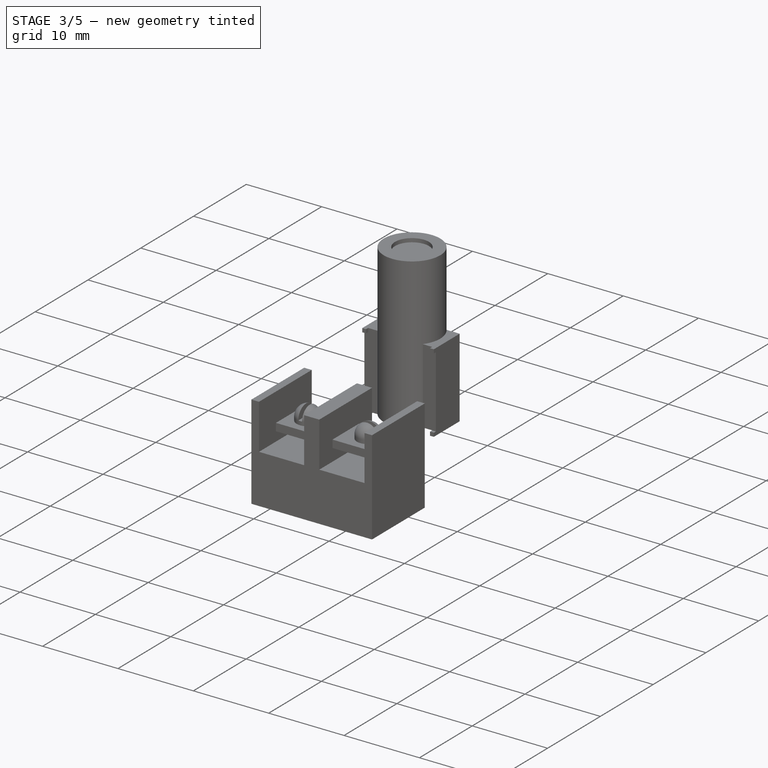
[diagram: stage 3 of 5 — iso view after this stage's code; geometry added in this stage tinted green]
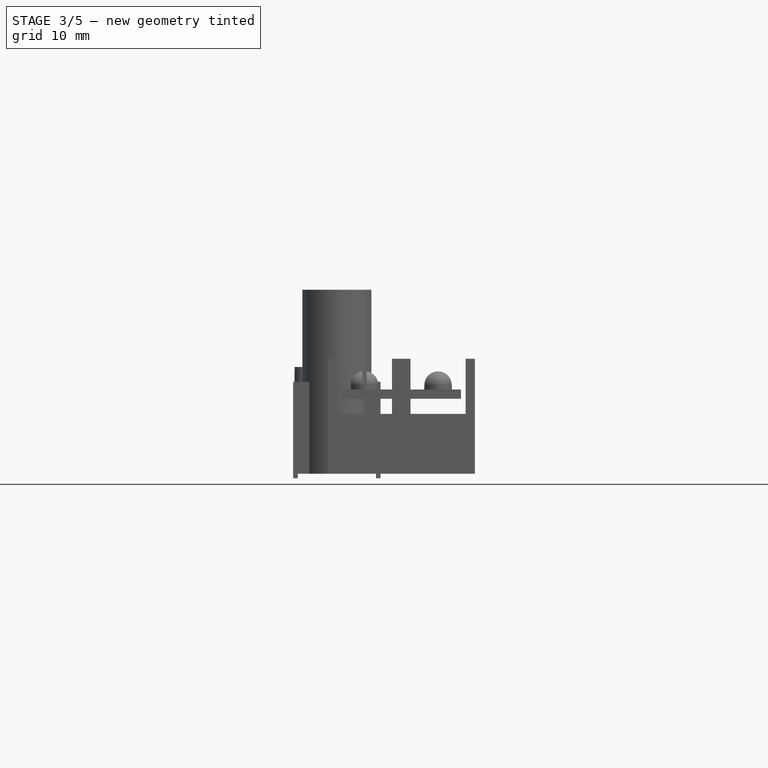
[diagram: stage 3 of 5 — front view after this stage's code; geometry added in this stage tinted green]
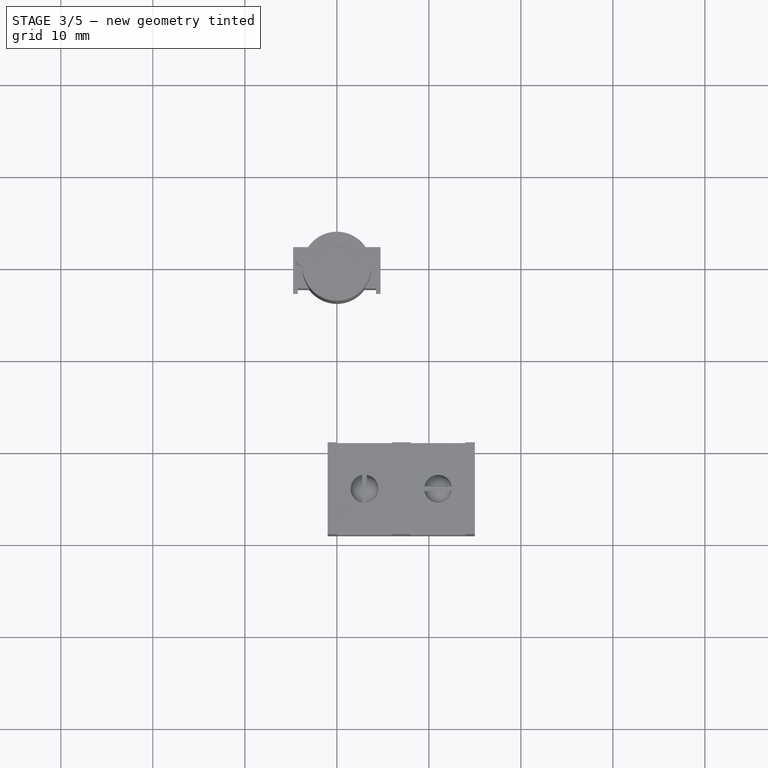
[diagram: stage 3 of 5 — top view after this stage's code; geometry added in this stage tinted green]
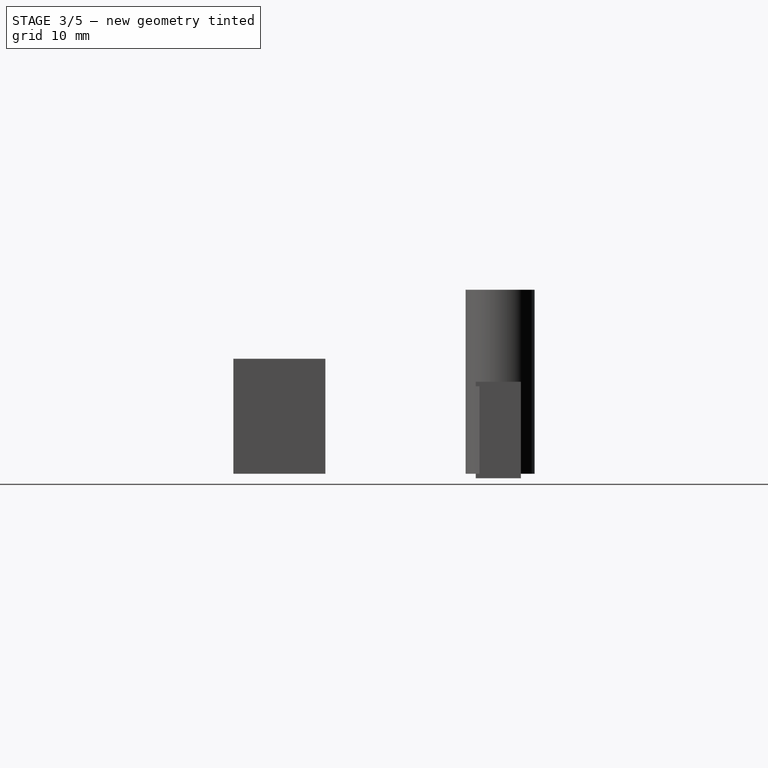
[diagram: stage 3 of 5 — right view after this stage's code; geometry added in this stage tinted green]
FEATURE [PartDesign::Body] Body017  label="Capacitor Shell001"
  Group = -> [Sketch040,Pad022,Sketch041,Pocket012,Sketch043,Pocket010,Fillet005]
  Origin = -> Origin025
  Tip = -> Fillet005
FEATURE [PartDesign::Body] Body018  label="Capacitor Cap001"
  Group = -> [Sketch044,Pad021,Sketch042,Pocket011]
  Origin = -> Origin026
  Placement = pos=(0,0,19) rot=(0,0,1;0rad)
  Tip = -> Pocket011
FEATURE [App::Part] Part008  label="Capacitor FR"
  Group = -> [Body017,Body018]
  Origin = -> Origin027
  Placement = pos=(-5,11.5,1.65) rot=(0,0,1;0rad)
FEATURE [Sketcher::SketchObject] Sketch045
  MapMode = 5
  Support = -> [XY_Plane030]
  sketch-geometry (1):
    g0: Circle CenterX=0 CenterY=0 CenterZ=0 NormalX=0 NormalY=0 NormalZ=1 AngleXU=0 Radius=3
  constraints (2):
    c: Coincident(g0,g-1)
    c: Radius(g0) = 3
FEATURE [PartDesign::Pad] Pad023  label="Capacitor Cap Baseblock002"
  Length = 0.5
  Length2 = 100
  Profile = -> Sketch045
  Type = 0
FEATURE [Sketcher::SketchObject] Sketch046
  MapMode = 5
  Placement = pos=(0,0,0.5) rot=(0,0,1;0rad)
  Support = -> [Pad023]
  sketch-geometry (12):
    g0: LineSegment StartX=-0.25 StartY=0.25 StartZ=0 EndX=-0.25 EndY=4.5 EndZ=0
    g1: LineSegment StartX=-0.25 StartY=4.5 StartZ=0 EndX=0.25 EndY=4.5 EndZ=0
    g2: LineSegment StartX=0.25 StartY=4.5 StartZ=0 EndX=0.25 EndY=0.25 EndZ=0
    g3: LineSegment StartX=0.25 StartY=0.25 StartZ=0 EndX=4.5 EndY=0.25 EndZ=0
    g4: LineSegment StartX=4.5 StartY=0.25 StartZ=0 EndX=4.5 EndY=-0.25 EndZ=0
    g5: LineSegment StartX=4.5 StartY=-0.25 StartZ=0 EndX=0.25 EndY=-0.25 EndZ=0
    g6: LineSegment StartX=0.25 StartY=-0.25 StartZ=0 EndX=0.25 EndY=-4.5 EndZ=0
    g7: LineSegment StartX=0.25 StartY=-4.5 StartZ=0 EndX=-0.25 EndY=-4.5 EndZ=0
    g8: LineSegment StartX=-0.25 StartY=-4.5 StartZ=0 EndX=-0.25 EndY=-0.25 EndZ=0
    g9: LineSegment StartX=-0.25 StartY=-0.25 StartZ=0 EndX=-4.5 EndY=-0.25 EndZ=0
    g10: LineSegment StartX=-4.5 StartY=-0.25 StartZ=0 EndX=-4.5 EndY=0.25 EndZ=0
    g11: LineSegment StartX=-4.5 StartY=0.25 StartZ=0 EndX=-0.25 EndY=0.25 EndZ=0
  constraints (32):
    c: Vertical(g0)
    c: Coincident(g0,g1)
    c: Coincident(g1,g2)
    c: Vertical(g2)
    c: Coincident(g2,g3)
    c: Horizontal(g3)
    c: Coincident(g3,g4)
    c: Coincident(g4,g5)
    c: Horizontal(g5)
    c: Coincident(g5,g6)
    c: Vertical(g6)
    c: Coincident(g6,g7)
    c: Horizontal(g7)
    c: Coincident(g7,g8)
    c: Vertical(g8)
    c: Coincident(g8,g9)
    c: Horizontal(g9)
    c: Coincident(g9,g10)
    c: Coincident(g10,g11)
    c: Coincident(g11,g0)
    c: Horizontal(g11)
    c: Vertical(g10)
    c: Horizontal(g8,g5)
    c: Vertical(g8,g0)
    c: Symmetric(g3,g4,g-1)
    c: Symmetric(g0,g1,g-2)
    c: Symmetric(g6,g1,g-1)
    c: Symmetric(g10,g3,g-2)
    c: Equal(g3,g2)
    c: Equal(g1,g4)
    c: DistanceX(g1,g1) = 0.5
    c: DistanceY(g6,g1) = 9
FEATURE [PartDesign::Pocket] Pocket014  label="Capacitor Cap Cross002"
  BaseFeature = -> Pad023
  Length = 0.2
  Length2 = 100
  Profile = -> Sketch046
  Type = 0
FEATURE [PartDesign::Body] Body020  label="Capacitor Cap002"
  Group = -> [Sketch045,Pad023,Sketch046,Pocket014]
  Origin = -> Origin029
  Placement = pos=(0,0,19) rot=(0,0,1;0rad)
  Tip = -> Pocket014
FEATURE [Sketcher::SketchObject] Sketch047
  MapMode = 5
  Support = -> [XY_Plane029]
  sketch-geometry (1):
    g0: Circle CenterX=0 CenterY=0 CenterZ=0 NormalX=0 NormalY=0 NormalZ=1 AngleXU=0 Radius=3.75
  constraints (2):
    c: Coincident(g0,g-1)
    c: Radius(g0) = 3.75
FEATURE [PartDesign::Pad] Pad024  label="Capacitor Shell Baseblock002"
  Length = 20
  Length2 = 100
  Profile = -> Sketch047
  Type = 0
FEATURE [Sketcher::SketchObject] Sketch048
  MapMode = 5
  Placement = pos=(0,0,20) rot=(0,0,1;0rad)
  Support = -> [Pad024]
  sketch-geometry (1):
    g0: Circle CenterX=0 CenterY=0 CenterZ=0 NormalX=0 NormalY=0 NormalZ=1 AngleXU=0 Radius=2.25
  constraints (2):
    c: Coincident(g0,g-1)
    c: Radius(g0) = 2.25
FEATURE [PartDesign::Pocket] Pocket015  label="Top Hole002"
  BaseFeature = -> Pad024
  Length = 0.5
  Length2 = 100
  Profile = -> Sketch048
  Type = 0
FEATURE [PartDesign::Body] Body019  label="Capacitor Shell002"
  Group = -> [Sketch047,Pad024,Sketch048,Pocket015,Sketch049,Pocket013,Fillet006]
  Origin = -> Origin028
  Tip = -> Fillet006
FEATURE [App::Part] Part009  label="Capacitor RL"
  Group = -> [Body019,Body020]
  Origin = -> Origin030
  Placement = pos=(-8,-9.5,1.65) rot=(0,0,1;0rad)
FEATURE [Sketcher::SketchObject] Sketch051
  MapMode = 5
  Support = -> [XY_Plane033]
  sketch-geometry (1):
    g0: Circle CenterX=0 CenterY=0 CenterZ=0 NormalX=0 NormalY=0 NormalZ=1 AngleXU=0 Radius=3
  constraints (2):
    c: Coincident(g0,g-1)
    c: Radius(g0) = 3
FEATURE [PartDesign::Pad] Pad025  label="Capacitor Cap Baseblock003"
  Length = 0.5
  Length2 = 100
  Profile = -> Sketch051
  Type = 0
FEATURE [Sketcher::SketchObject] Sketch052
  MapMode = 5
  Placement = pos=(0,0,0.5) rot=(0,0,1;0rad)
  Support = -> [Pad025]
  sketch-geometry (12):
    g0: LineSegment StartX=-0.25 StartY=0.25 StartZ=0 EndX=-0.25 EndY=4.5 EndZ=0
    g1: LineSegment StartX=-0.25 StartY=4.5 StartZ=0 EndX=0.25 EndY=4.5 EndZ=0
    g2: LineSegment StartX=0.25 StartY=4.5 StartZ=0 EndX=0.25 EndY=0.25 EndZ=0
    g3: LineSegment StartX=0.25 StartY=0.25 StartZ=0 EndX=4.5 EndY=0.25 EndZ=0
    g4: LineSegment StartX=4.5 StartY=0.25 StartZ=0 EndX=4.5 EndY=-0.25 EndZ=0
    g5: LineSegment StartX=4.5 StartY=-0.25 StartZ=0 EndX=0.25 EndY=-0.25 EndZ=0
    g6: LineSegment StartX=0.25 StartY=-0.25 StartZ=0 EndX=0.25 EndY=-4.5 EndZ=0
    g7: LineSegment StartX=0.25 StartY=-4.5 StartZ=0 EndX=-0.25 EndY=-4.5 EndZ=0
    g8: LineSegment StartX=-0.25 StartY=-4.5 StartZ=0 EndX=-0.25 EndY=-0.25 EndZ=0
    g9: LineSegment StartX=-0.25 StartY=-0.25 StartZ=0 EndX=-4.5 EndY=-0.25 EndZ=0
    g10: LineSegment StartX=-4.5 StartY=-0.25 StartZ=0 EndX=-4.5 EndY=0.25 EndZ=0
    g11: LineSegment StartX=-4.5 StartY=0.25 StartZ=0 EndX=-0.25 EndY=0.25 EndZ=0
  constraints (32):
    c: Vertical(g0)
    c: Coincident(g0,g1)
    c: Coincident(g1,g2)
    c: Vertical(g2)
    c: Coincident(g2,g3)
    c: Horizontal(g3)
    c: Coincident(g3,g4)
    c: Coincident(g4,g5)
    c: Horizontal(g5)
    c: Coincident(g5,g6)
    c: Vertical(g6)
    c: Coincident(g6,g7)
    c: Horizontal(g7)
    c: Coincident(g7,g8)
    c: Vertical(g8)
    c: Coincident(g8,g9)
    c: Horizontal(g9)
    c: Coincident(g9,g10)
    c: Coincident(g10,g11)
    c: Coincident(g11,g0)
    c: Horizontal(g11)
    c: Vertical(g10)
    c: Horizontal(g8,g5)
    c: Vertical(g8,g0)
    c: Symmetric(g3,g4,g-1)
    c: Symmetric(g0,g1,g-2)
    c: Symmetric(g6,g1,g-1)
    c: Symmetric(g10,g3,g-2)
    c: Equal(g3,g2)
    c: Equal(g1,g4)
    c: DistanceX(g1,g1) = 0.5
    c: DistanceY(g6,g1) = 9
FEATURE [PartDesign::Pocket] Pocket017  label="Capacitor Cap Cross003"
  BaseFeature = -> Pad025
  Length = 0.2
  Length2 = 100
  Profile = -> Sketch052
  Type = 0
FEATURE [PartDesign::Body] Body021  label="Capacitor Cap003"
  Group = -> [Sketch051,Pad025,Sketch052,Pocket017]
  Origin = -> Origin032
  Placement = pos=(0,0,19) rot=(0,0,1;0rad)
  Tip = -> Pocket017
FEATURE [Sketcher::SketchObject] Sketch053
  MapMode = 5
  Support = -> [XY_Plane032]
  sketch-geometry (1):
    g0: Circle CenterX=0 CenterY=0 CenterZ=0 NormalX=0 NormalY=0 NormalZ=1 AngleXU=0 Radius=3.75
  constraints (2):
    c: Coincident(g0,g-1)
    c: Radius(g0) = 3.75
FEATURE [PartDesign::Pad] Pad026  label="Capacitor Shell Baseblock003"
  Length = 20
  Length2 = 100
  Profile = -> Sketch053
  Type = 0
FEATURE [Sketcher::SketchObject] Sketch054
  MapMode = 5
  Placement = pos=(0,0,20) rot=(0,0,1;0rad)
  Support = -> [Pad026]
  sketch-geometry (1):
    g0: Circle CenterX=0 CenterY=0 CenterZ=0 NormalX=0 NormalY=0 NormalZ=1 AngleXU=0 Radius=2.25
  constraints (2):
    c: Coincident(g0,g-1)
    c: Radius(g0) = 2.25
FEATURE [PartDesign::Pocket] Pocket018  label="Top Hole003"
  BaseFeature = -> Pad026
  Length = 0.5
  Length2 = 100
  Profile = -> Sketch054
  Type = 0
FEATURE [Sketcher::SketchObject] Sketch050
  MapMode = 5
  Placement = pos=(0,0,19.5) rot=(0,0,1;0rad)
  Support = -> [Pocket018]
  sketch-geometry (1):
    g0: Circle CenterX=0 CenterY=0 CenterZ=0 NormalX=0 NormalY=0 NormalZ=1 AngleXU=0 Radius=3.25
  constraints (2):
    c: Coincident(g0,g-1)
    c: Radius(g0) = 3.25
FEATURE [PartDesign::Pocket] Pocket016  label="Top Hole widening003"
  BaseFeature = -> Pocket018
  Length = 1
  Length2 = 100
  Profile = -> Sketch050
  Type = 0
FEATURE [PartDesign::Fillet] Fillet007  label="Top Edge rounded003"
  Base = -> Pocket016 [Edge3]
  BaseFeature = -> Pocket016
  Radius = 0.5
FEATURE [Sketcher::SketchObject] Sketch057
  MapMode = 5
  Placement = pos=(0,0,19.5) rot=(0,0,1;0rad)
  Support = -> [Pocket021]
  sketch-geometry (1):
    g0: Circle CenterX=0 CenterY=0 CenterZ=0 NormalX=0 NormalY=0 NormalZ=1 AngleXU=0 Radius=3.25
  constraints (2):
    c: Coincident(g0,g-1)
    c: Radius(g0) = 3.25
FEATURE [PartDesign::Pocket] Pocket019  label="Top Hole widening004"
  BaseFeature = -> Pocket021
  Length = 1
  Length2 = 100
  Profile = -> Sketch057
  Type = 0
FEATURE [PartDesign::Fillet] Fillet008  label="Top Edge rounded004"
  Base = -> Pocket019 [Edge3]
  BaseFeature = -> Pocket019
  Radius = 0.5
FEATURE [Sketcher::SketchObject] Sketch058
  MapMode = 5
  Placement = pos=(0,0,0.5) rot=(0,0,1;0rad)
  Support = -> [Pad028]
  sketch-geometry (12):
    g0: LineSegment StartX=-0.25 StartY=0.25 StartZ=0 EndX=-0.25 EndY=4.5 EndZ=0
    g1: LineSegment StartX=-0.25 StartY=4.5 StartZ=0 EndX=0.25 EndY=4.5 EndZ=0
    g2: LineSegment StartX=0.25 StartY=4.5 StartZ=0 EndX=0.25 EndY=0.25 EndZ=0
    g3: LineSegment StartX=0.25 StartY=0.25 StartZ=0 EndX=4.5 EndY=0.25 EndZ=0
    g4: LineSegment StartX=4.5 StartY=0.25 StartZ=0 EndX=4.5 EndY=-0.25 EndZ=0
    g5: LineSegment StartX=4.5 StartY=-0.25 StartZ=0 EndX=0.25 EndY=-0.25 EndZ=0
    g6: LineSegment StartX=0.25 StartY=-0.25 StartZ=0 EndX=0.25 EndY=-4.5 EndZ=0
    g7: LineSegment StartX=0.25 StartY=-4.5 StartZ=0 EndX=-0.25 EndY=-4.5 EndZ=0
    g8: LineSegment StartX=-0.25 StartY=-4.5 StartZ=0 EndX=-0.25 EndY=-0.25 EndZ=0
    g9: LineSegment StartX=-0.25 StartY=-0.25 StartZ=0 EndX=-4.5 EndY=-0.25 EndZ=0
    g10: LineSegment StartX=-4.5 StartY=-0.25 StartZ=0 EndX=-4.5 EndY=0.25 EndZ=0
    g11: LineSegment StartX=-4.5 StartY=0.25 StartZ=0 EndX=-0.25 EndY=0.25 EndZ=0
  constraints (32):
    c: Vertical(g0)
    c: Coincident(g0,g1)
    c: Coincident(g1,g2)
    c: Vertical(g2)
    c: Coincident(g2,g3)
    c: Horizontal(g3)
    c: Coincident(g3,g4)
    c: Coincident(g4,g5)
    c: Horizontal(g5)
    c: Coincident(g5,g6)
    c: Vertical(g6)
    c: Coincident(g6,g7)
    c: Horizontal(g7)
    c: Coincident(g7,g8)
    c: Vertical(g8)
    c: Coincident(g8,g9)
    c: Horizontal(g9)
    c: Coincident(g9,g10)
    c: Coincident(g10,g11)
    c: Coincident(g11,g0)
    c: Horizontal(g11)
    c: Vertical(g10)
    c: Horizontal(g8,g5)
    c: Vertical(g8,g0)
    c: Symmetric(g3,g4,g-1)
    c: Symmetric(g0,g1,g-2)
    c: Symmetric(g6,g1,g-1)
    c: Symmetric(g10,g3,g-2)
    c: Equal(g3,g2)
    c: Equal(g1,g4)
    c: DistanceX(g1,g1) = 0.5
    c: DistanceY(g6,g1) = 9
FEATURE [PartDesign::Pocket] Pocket020  label="Capacitor Cap Cross004"
  BaseFeature = -> Pad028
  Length = 0.2
  Length2 = 100
  Profile = -> Sketch058
  Type = 0
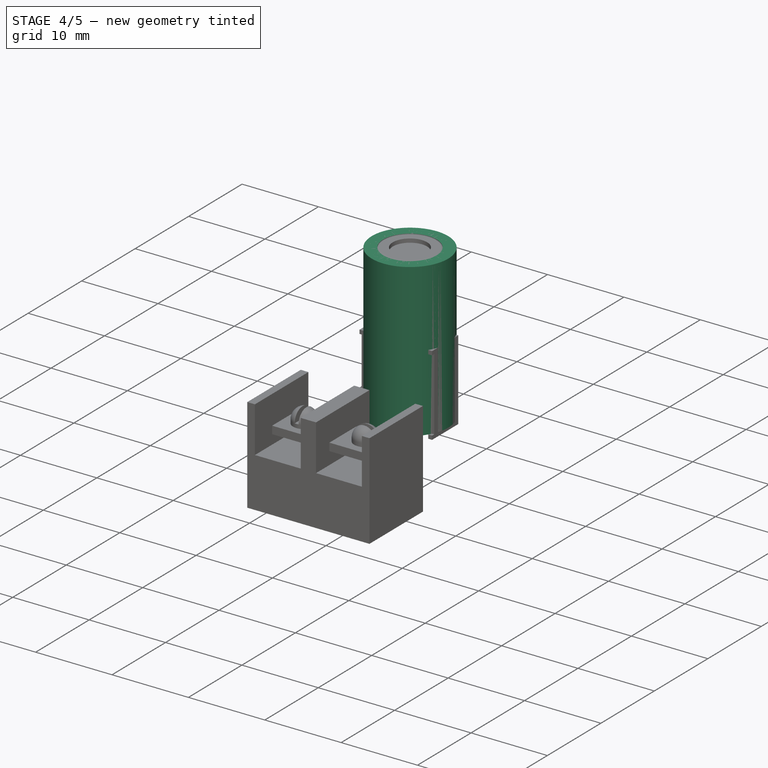
[diagram: stage 4 of 5 — iso view after this stage's code; geometry added in this stage tinted green]
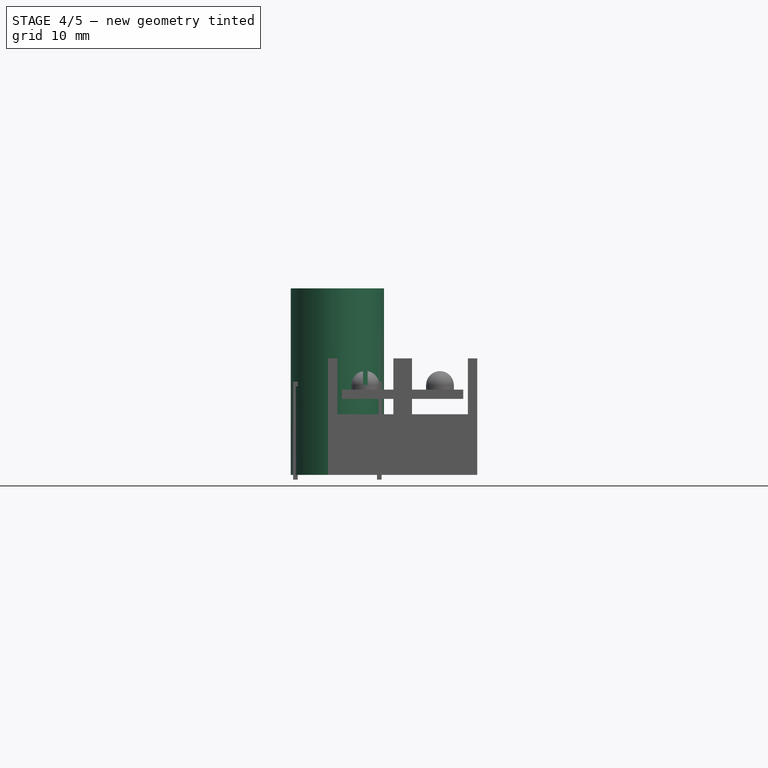
[diagram: stage 4 of 5 — front view after this stage's code; geometry added in this stage tinted green]
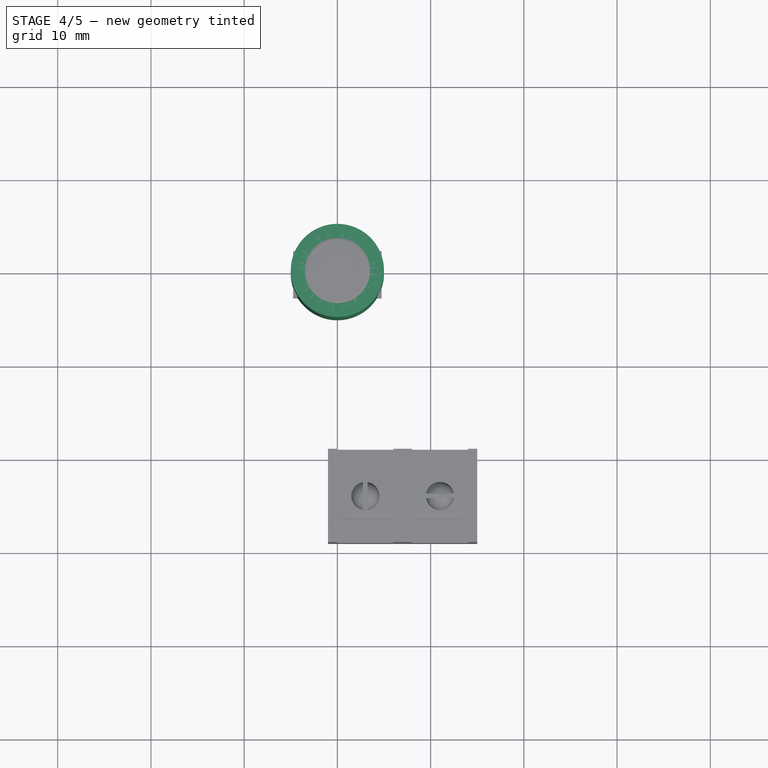
[diagram: stage 4 of 5 — top view after this stage's code; geometry added in this stage tinted green]
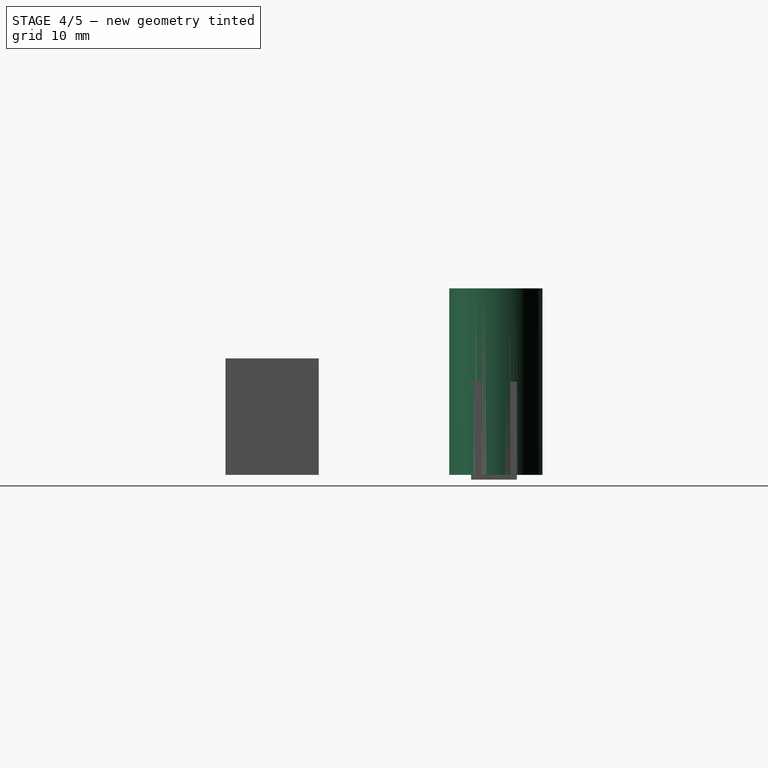
[diagram: stage 4 of 5 — right view after this stage's code; geometry added in this stage tinted green]
FEATURE [PartDesign::Body] Body015  label="Iron Core"
  Group = -> [Sketch038,Pad019,Fillet004]
  Origin = -> Origin023
  Tip = -> Fillet004
FEATURE [PartDesign::Body] Body016  label="Copperring"
  Group = -> [Sketch039,Pad020,PolarPattern]
  Origin = -> Origin024
  Tip = -> PolarPattern
FEATURE [App::Part] Part007  label="Copperring Core"
  Group = -> [Body015,Body016]
  Origin = -> Origin022
  Placement = pos=(0,4,14.3) rot=(1,0,0;1.5708rad)
FEATURE [Sketcher::SketchObject] Sketch018
  MapMode = 5
  Support = -> [XY_Plane011]
  sketch-geometry (1):
    g0: Circle CenterX=0 CenterY=0 CenterZ=0 NormalX=0 NormalY=0 NormalZ=1 AngleXU=0 Radius=5
  constraints (2):
    c: Coincident(g0,g-1)
    c: Radius(g0) = 5
FEATURE [Sketcher::SketchObject] Sketch021
  MapMode = 5
  Support = -> [XY_Plane012]
  sketch-geometry (1):
    g0: Circle CenterX=0 CenterY=0 CenterZ=0 NormalX=0 NormalY=0 NormalZ=1 AngleXU=0 Radius=4.25
  constraints (2):
    c: Coincident(g0,g-1)
    c: Radius(g0) = 4.25
FEATURE [PartDesign::Pad] Pad011  label="Capacitor Shell Baseblock"
  Length = 20
  Length2 = 100
  Profile = -> Sketch018
  Type = 0
FEATURE [Sketcher::SketchObject] Sketch019
  MapMode = 5
  Placement = pos=(0,0,20) rot=(0,0,1;0rad)
  Support = -> [Pad011]
  sketch-geometry (1):
    g0: Circle CenterX=0 CenterY=0 CenterZ=0 NormalX=0 NormalY=0 NormalZ=1 AngleXU=0 Radius=3.5
  constraints (2):
    c: Coincident(g0,g-1)
    c: Radius(g0) = 3.5
FEATURE [PartDesign::Pocket] Pocket007  label="Top Hole"
  BaseFeature = -> Pad011
  Length = 0.5
  Length2 = 100
  Profile = -> Sketch019
  Type = 0
FEATURE [PartDesign::Body] Body007  label="Capacitor Shell"
  Group = -> [Sketch018,Pad011,Sketch019,Pocket007,Sketch020,Pocket008,Fillet]
  Origin = -> Origin011
  Tip = -> Fillet
FEATURE [PartDesign::Pad] Pad012  label="Capacitor Cap Baseblock"
  Length = 0.5
  Length2 = 100
  Profile = -> Sketch021
  Type = 0
FEATURE [Sketcher::SketchObject] Sketch022
  MapMode = 5
  Placement = pos=(0,0,0.5) rot=(0,0,1;0rad)
  Support = -> [Pad012]
  sketch-geometry (12):
    g0: LineSegment StartX=-0.25 StartY=0.25 StartZ=0 EndX=-0.25 EndY=4.5 EndZ=0
    g1: LineSegment StartX=-0.25 StartY=4.5 StartZ=0 EndX=0.25 EndY=4.5 EndZ=0
    g2: LineSegment StartX=0.25 StartY=4.5 StartZ=0 EndX=0.25 EndY=0.25 EndZ=0
    g3: LineSegment StartX=0.25 StartY=0.25 StartZ=0 EndX=4.5 EndY=0.25 EndZ=0
    g4: LineSegment StartX=4.5 StartY=0.25 StartZ=0 EndX=4.5 EndY=-0.25 EndZ=0
    g5: LineSegment StartX=4.5 StartY=-0.25 StartZ=0 EndX=0.25 EndY=-0.25 EndZ=0
    g6: LineSegment StartX=0.25 StartY=-0.25 StartZ=0 EndX=0.25 EndY=-4.5 EndZ=0
    g7: LineSegment StartX=0.25 StartY=-4.5 StartZ=0 EndX=-0.25 EndY=-4.5 EndZ=0
    g8: LineSegment StartX=-0.25 StartY=-4.5 StartZ=0 EndX=-0.25 EndY=-0.25 EndZ=0
    g9: LineSegment StartX=-0.25 StartY=-0.25 StartZ=0 EndX=-4.5 EndY=-0.25 EndZ=0
    g10: LineSegment StartX=-4.5 StartY=-0.25 StartZ=0 EndX=-4.5 EndY=0.25 EndZ=0
    g11: LineSegment StartX=-4.5 StartY=0.25 StartZ=0 EndX=-0.25 EndY=0.25 EndZ=0
  constraints (32):
    c: Vertical(g0)
    c: Coincident(g0,g1)
    c: Coincident(g1,g2)
    c: Vertical(g2)
    c: Coincident(g2,g3)
    c: Horizontal(g3)
    c: Coincident(g3,g4)
    c: Coincident(g4,g5)
    c: Horizontal(g5)
    c: Coincident(g5,g6)
    c: Vertical(g6)
    c: Coincident(g6,g7)
    c: Horizontal(g7)
    c: Coincident(g7,g8)
    c: Vertical(g8)
    c: Coincident(g8,g9)
    c: Horizontal(g9)
    c: Coincident(g9,g10)
    c: Coincident(g10,g11)
    c: Coincident(g11,g0)
    c: Horizontal(g11)
    c: Vertical(g10)
    c: Horizontal(g8,g5)
    c: Vertical(g8,g0)
    c: Symmetric(g3,g4,g-1)
    c: Symmetric(g0,g1,g-2)
    c: Symmetric(g6,g1,g-1)
    c: Symmetric(g10,g3,g-2)
    c: Equal(g3,g2)
    c: Equal(g1,g4)
    c: DistanceX(g1,g1) = 0.5
    c: DistanceY(g6,g1) = 9
FEATURE [PartDesign::Pocket] Pocket009  label="Capacitor Cap Cross"
  BaseFeature = -> Pad012
  Length = 0.2
  Length2 = 100
  Profile = -> Sketch022
  Type = 0
FEATURE [PartDesign::Body] Body008  label="Capacitor Cap"
  Group = -> [Sketch021,Pad012,Sketch022,Pocket009]
  Origin = -> Origin012
  Placement = pos=(0,0,19) rot=(0,0,1;0rad)
  Tip = -> Pocket009
FEATURE [App::Part] Part003  label="Capacitor FL"
  Group = -> [Body007,Body008]
  Origin = -> Origin010
  Placement = pos=(5,11.5,1.65) rot=(0,0,1;0rad)
FEATURE [Sketcher::SketchObject] Sketch040
  MapMode = 5
  Support = -> [XY_Plane026]
  sketch-geometry (1):
    g0: Circle CenterX=0 CenterY=0 CenterZ=0 NormalX=0 NormalY=0 NormalZ=1 AngleXU=0 Radius=5
  constraints (2):
    c: Coincident(g0,g-1)
    c: Radius(g0) = 5
FEATURE [Sketcher::SketchObject] Sketch044
  MapMode = 5
  Support = -> [XY_Plane025]
  sketch-geometry (1):
    g0: Circle CenterX=0 CenterY=0 CenterZ=0 NormalX=0 NormalY=0 NormalZ=1 AngleXU=0 Radius=4.25
  constraints (2):
    c: Coincident(g0,g-1)
    c: Radius(g0) = 4.25
FEATURE [PartDesign::Pad] Pad021  label="Capacitor Cap Baseblock001"
  Length = 0.5
  Length2 = 100
  Profile = -> Sketch044
  Type = 0
FEATURE [Sketcher::SketchObject] Sketch042
  MapMode = 5
  Placement = pos=(0,0,0.5) rot=(0,0,1;0rad)
  Support = -> [Pad021]
  sketch-geometry (12):
    g0: LineSegment StartX=-0.25 StartY=0.25 StartZ=0 EndX=-0.25 EndY=4.5 EndZ=0
    g1: LineSegment StartX=-0.25 StartY=4.5 StartZ=0 EndX=0.25 EndY=4.5 EndZ=0
    g2: LineSegment StartX=0.25 StartY=4.5 StartZ=0 EndX=0.25 EndY=0.25 EndZ=0
    g3: LineSegment StartX=0.25 StartY=0.25 StartZ=0 EndX=4.5 EndY=0.25 EndZ=0
    g4: LineSegment StartX=4.5 StartY=0.25 StartZ=0 EndX=4.5 EndY=-0.25 EndZ=0
    g5: LineSegment StartX=4.5 StartY=-0.25 StartZ=0 EndX=0.25 EndY=-0.25 EndZ=0
    g6: LineSegment StartX=0.25 StartY=-0.25 StartZ=0 EndX=0.25 EndY=-4.5 EndZ=0
    g7: LineSegment StartX=0.25 StartY=-4.5 StartZ=0 EndX=-0.25 EndY=-4.5 EndZ=0
    g8: LineSegment StartX=-0.25 StartY=-4.5 StartZ=0 EndX=-0.25 EndY=-0.25 EndZ=0
    g9: LineSegment StartX=-0.25 StartY=-0.25 StartZ=0 EndX=-4.5 EndY=-0.25 EndZ=0
    g10: LineSegment StartX=-4.5 StartY=-0.25 StartZ=0 EndX=-4.5 EndY=0.25 EndZ=0
    g11: LineSegment StartX=-4.5 StartY=0.25 StartZ=0 EndX=-0.25 EndY=0.25 EndZ=0
  constraints (32):
    c: Vertical(g0)
    c: Coincident(g0,g1)
    c: Coincident(g1,g2)
    c: Vertical(g2)
    c: Coincident(g2,g3)
    c: Horizontal(g3)
    c: Coincident(g3,g4)
    c: Coincident(g4,g5)
    c: Horizontal(g5)
    c: Coincident(g5,g6)
    c: Vertical(g6)
    c: Coincident(g6,g7)
    c: Horizontal(g7)
    c: Coincident(g7,g8)
    c: Vertical(g8)
    c: Coincident(g8,g9)
    c: Horizontal(g9)
    c: Coincident(g9,g10)
    c: Coincident(g10,g11)
    c: Coincident(g11,g0)
    c: Horizontal(g11)
    c: Vertical(g10)
    c: Horizontal(g8,g5)
    c: Vertical(g8,g0)
    c: Symmetric(g3,g4,g-1)
    c: Symmetric(g0,g1,g-2)
    c: Symmetric(g6,g1,g-1)
    c: Symmetric(g10,g3,g-2)
    c: Equal(g3,g2)
    c: Equal(g1,g4)
    c: DistanceX(g1,g1) = 0.5
    c: DistanceY(g6,g1) = 9
FEATURE [PartDesign::Pocket] Pocket011  label="Capacitor Cap Cross001"
  BaseFeature = -> Pad021
  Length = 0.2
  Length2 = 100
  Profile = -> Sketch042
  Type = 0
FEATURE [PartDesign::Pad] Pad022  label="Capacitor Shell Baseblock001"
  Length = 20
  Length2 = 100
  Profile = -> Sketch040
  Type = 0
FEATURE [Sketcher::SketchObject] Sketch041
  MapMode = 5
  Placement = pos=(0,0,20) rot=(0,0,1;0rad)
  Support = -> [Pad022]
  sketch-geometry (1):
    g0: Circle CenterX=0 CenterY=0 CenterZ=0 NormalX=0 NormalY=0 NormalZ=1 AngleXU=0 Radius=3.5
  constraints (2):
    c: Coincident(g0,g-1)
    c: Radius(g0) = 3.5
FEATURE [PartDesign::Pocket] Pocket012  label="Top Hole001"
  BaseFeature = -> Pad022
  Length = 0.5
  Length2 = 100
  Profile = -> Sketch041
  Type = 0
FEATURE [Sketcher::SketchObject] Sketch043
  MapMode = 5
  Placement = pos=(0,0,19.5) rot=(0,0,1;0rad)
  Support = -> [Pocket012]
  sketch-geometry (1):
    g0: Circle CenterX=0 CenterY=0 CenterZ=0 NormalX=0 NormalY=0 NormalZ=1 AngleXU=0 Radius=4.5
  constraints (2):
    c: Coincident(g0,g-1)
    c: Radius(g0) = 4.5
FEATURE [PartDesign::Pocket] Pocket010  label="Top Hole widening001"
  BaseFeature = -> Pocket012
  Length = 1
  Length2 = 100
  Profile = -> Sketch043
  Type = 0
FEATURE [PartDesign::Fillet] Fillet005  label="Top Edge rounded001"
  Base = -> Pocket010 [Edge3]
  BaseFeature = -> Pocket010
  Radius = 0.5
FEATURE [Sketcher::SketchObject] Sketch049
  MapMode = 5
  Placement = pos=(0,0,19.5) rot=(0,0,1;0rad)
  Support = -> [Pocket015]
  sketch-geometry (1):
    g0: Circle CenterX=0 CenterY=0 CenterZ=0 NormalX=0 NormalY=0 NormalZ=1 AngleXU=0 Radius=3.25
  constraints (2):
    c: Coincident(g0,g-1)
    c: Radius(g0) = 3.25
FEATURE [PartDesign::Pocket] Pocket013  label="Top Hole widening002"
  BaseFeature = -> Pocket015
  Length = 1
  Length2 = 100
  Profile = -> Sketch049
  Type = 0
FEATURE [PartDesign::Fillet] Fillet006  label="Top Edge rounded002"
  Base = -> Pocket013 [Edge3]
  BaseFeature = -> Pocket013
  Radius = 0.5
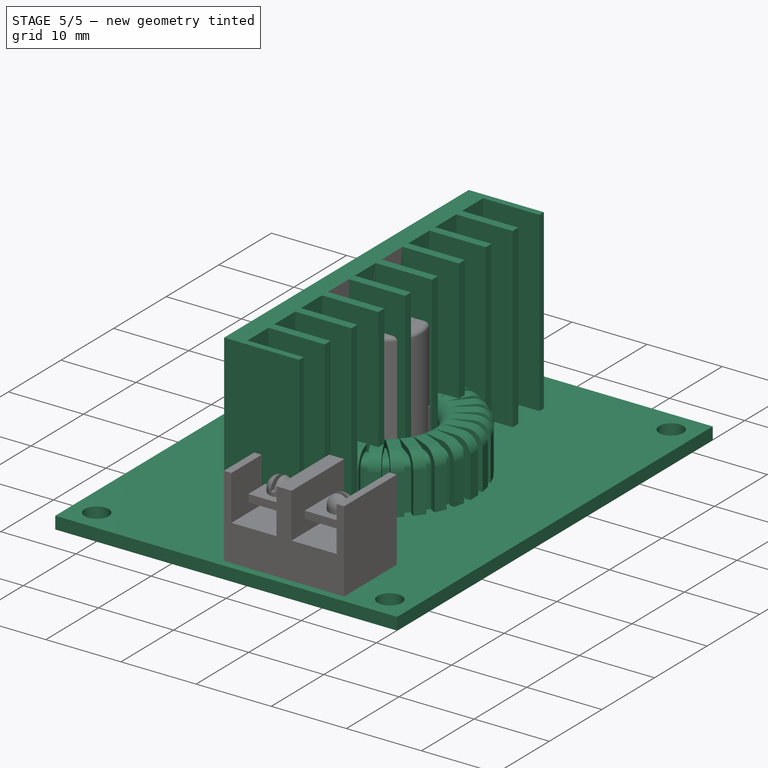
[diagram: stage 5 of 5 — iso view after this stage's code; geometry added in this stage tinted green]
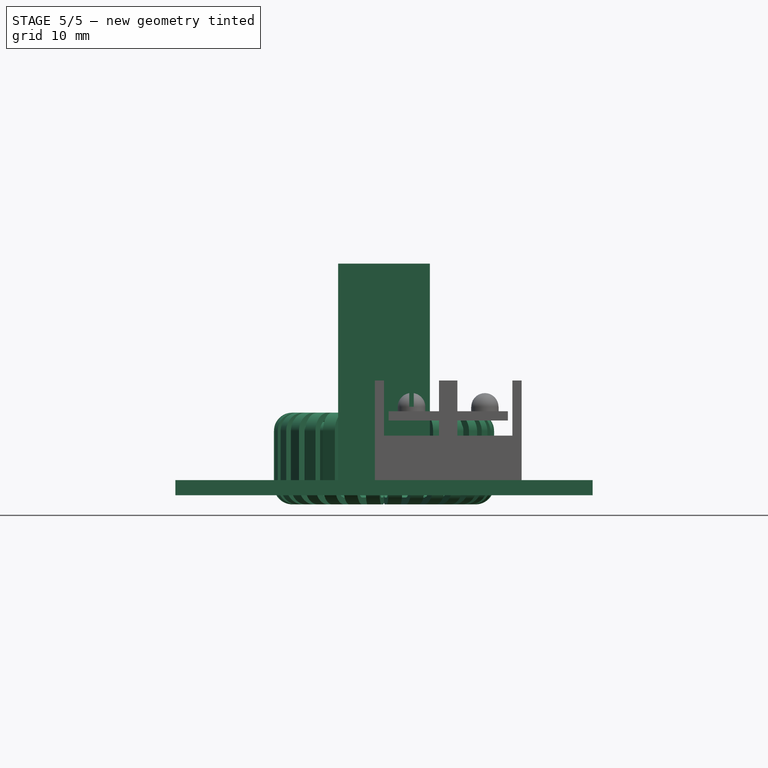
[diagram: stage 5 of 5 — front view after this stage's code; geometry added in this stage tinted green]
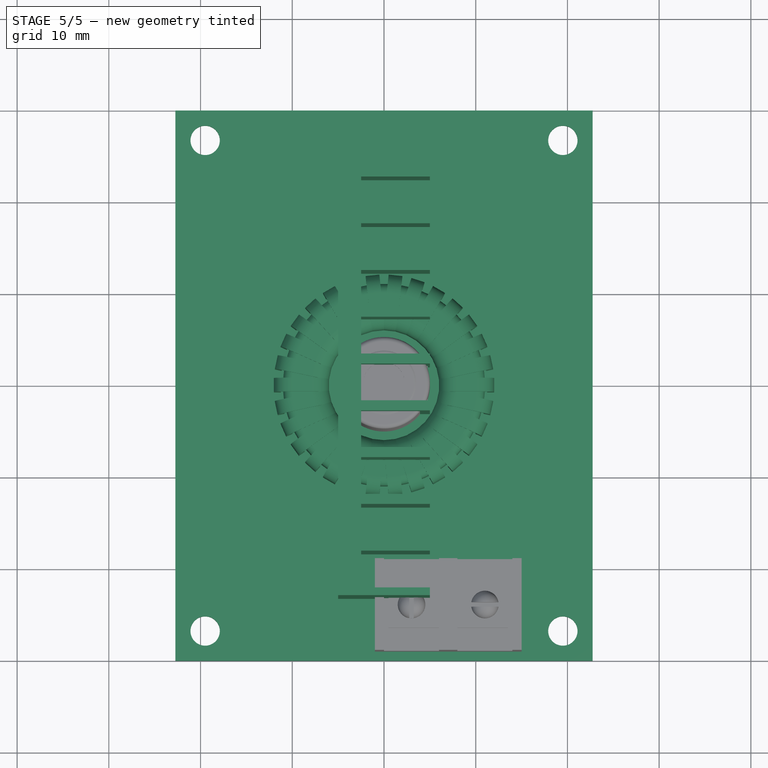
[diagram: stage 5 of 5 — top view after this stage's code; geometry added in this stage tinted green]
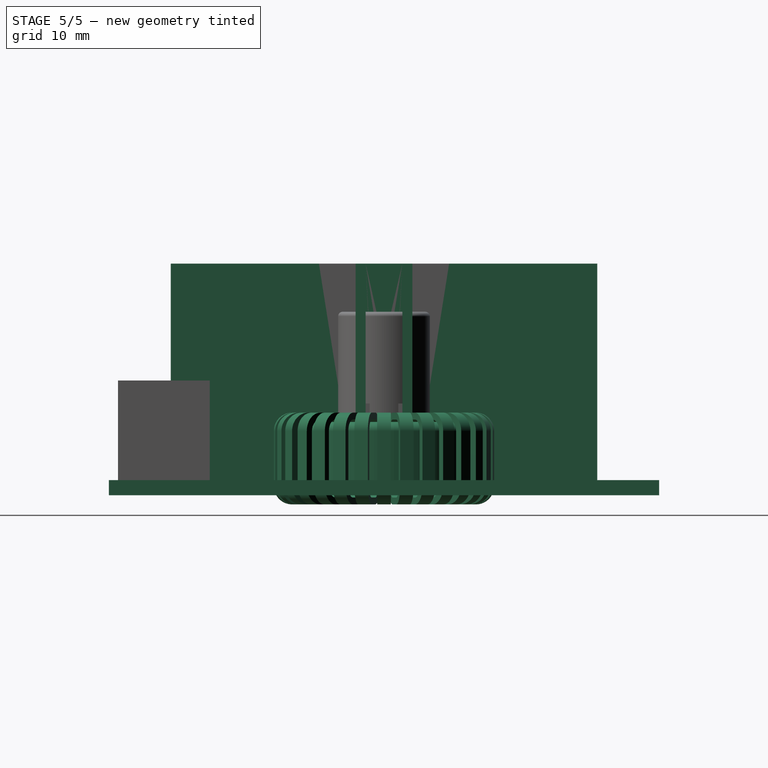
[diagram: stage 5 of 5 — right view after this stage's code; geometry added in this stage tinted green]
FEATURE [Sketcher::SketchObject] Sketch
  MapMode = 5
  Support = -> [XY_Plane001]
  sketch-geometry (8):
    g0: LineSegment StartX=-22.75 StartY=30 StartZ=0 EndX=22.75 EndY=30 EndZ=0
    g1: LineSegment StartX=22.75 StartY=30 StartZ=0 EndX=22.75 EndY=-30 EndZ=0
    g2: LineSegment StartX=22.75 StartY=-30 StartZ=0 EndX=-22.75 EndY=-30 EndZ=0
    g3: LineSegment StartX=-22.75 StartY=-30 StartZ=0 EndX=-22.75 EndY=30 EndZ=0
    g4: Circle CenterX=-19.5 CenterY=26.75 CenterZ=0 NormalX=0 NormalY=0 NormalZ=1 AngleXU=0 Radius=1.6
    g5: Circle CenterX=19.5 CenterY=26.75 CenterZ=0 NormalX=0 NormalY=0 NormalZ=1 AngleXU=0 Radius=1.6
    g6: Circle CenterX=19.5 CenterY=-26.75 CenterZ=0 NormalX=0 NormalY=0 NormalZ=1 AngleXU=0 Radius=1.6
    g7: Circle CenterX=-19.5 CenterY=-26.75 CenterZ=0 NormalX=0 NormalY=0 NormalZ=1 AngleXU=0 Radius=1.6
  constraints (19):
    c: Coincident(g0,g1)
    c: Coincident(g1,g2)
    c: Coincident(g2,g3)
    c: Coincident(g3,g0)
    c: Horizontal(g2)
    c: Vertical(g3)
    c: Symmetric(g0,g0,g-2)
    c: Symmetric(g0,g1,g-1)
    c: DistanceX(g0,g0) = 45.5
    c: DistanceY(g1,g1) = 60
    c: Symmetric(g4,g5,g-2)
    c: Symmetric(g5,g6,g-1)
    c: Symmetric(g7,g6,g-2)
    c: Equal(g6,g7)
    c: Equal(g7,g4)
    c: Equal(g4,g5)
    c: Radius(g5) = 1.6
    c: DistanceX(g4,g5) = 39
    c: DistanceY(g6,g5) = 53.5
FEATURE [PartDesign::Pad] Pad
  Length = 1.65
  Length2 = 100
  Profile = -> Sketch
  Type = 0
FEATURE [PartDesign::Body] Body  label="SZBK07_PCB"
  Group = -> [Sketch,Pad]
  Origin = -> Origin001
  Tip = -> Pad
FEATURE [Sketcher::SketchObject] Sketch002
  MapMode = 5
  Support = -> [XY_Plane002]
  sketch-geometry (4):
    g0: LineSegment StartX=-5 StartY=23.25 StartZ=0 EndX=5 EndY=23.25 EndZ=0
    g1: LineSegment StartX=5 StartY=23.25 StartZ=0 EndX=5 EndY=-23.25 EndZ=0
    g2: LineSegment StartX=5 StartY=-23.25 StartZ=0 EndX=-5 EndY=-23.25 EndZ=0
    g3: LineSegment StartX=-5 StartY=-23.25 StartZ=0 EndX=-5 EndY=23.25 EndZ=0
  constraints (10):
    c: Coincident(g0,g1)
    c: Coincident(g1,g2)
    c: Coincident(g2,g3)
    c: Coincident(g3,g0)
    c: Horizontal(g2)
    c: Vertical(g3)
    c: DistanceX(g0,g0) = 10
    c: DistanceY(g1,g1) = 46.5
    c: Symmetric(g0,g1,g-1)
    c: Symmetric(g0,g0,g-2)
FEATURE [PartDesign::Pad] Pad001  label="Cooling Fin Baseblock"
  Length = 25.25
  Length2 = 100
  Profile = -> Sketch002
  Type = 0
FEATURE [Sketcher::SketchObject] Sketch003
  MapMode = 5
  Placement = pos=(0,0,25.25) rot=(0,0,1;0rad)
  Support = -> [Pad001]
  sketch-geometry (36):
    g0: LineSegment StartX=-2.5 StartY=22.4 StartZ=0 EndX=7.5 EndY=22.4 EndZ=0
    g1: LineSegment StartX=7.5 StartY=22.4 StartZ=0 EndX=7.5 EndY=18.4 EndZ=0
    g2: LineSegment StartX=7.5 StartY=18.4 StartZ=0 EndX=-2.5 EndY=18.4 EndZ=0
    g3: LineSegment StartX=-2.5 StartY=18.4 StartZ=0 EndX=-2.5 EndY=22.4 EndZ=0
    g4: LineSegment StartX=-2.5 StartY=12.2 StartZ=0 EndX=7.5 EndY=12.2 EndZ=0
    g5: LineSegment StartX=7.5 StartY=12.2 StartZ=0 EndX=7.5 EndY=8.2 EndZ=0
    g6: LineSegment StartX=7.5 StartY=8.2 StartZ=0 EndX=-2.5 EndY=8.2 EndZ=0
    g7: LineSegment StartX=-2.5 StartY=8.2 StartZ=0 EndX=-2.5 EndY=12.2 EndZ=0
    g8: LineSegment StartX=-2.5 StartY=17.3 StartZ=0 EndX=7.5 EndY=17.3 EndZ=0
    g9: LineSegment StartX=7.5 StartY=17.3 StartZ=0 EndX=7.5 EndY=13.3 EndZ=0
    g10: LineSegment StartX=7.5 StartY=13.3 StartZ=0 EndX=-2.5 EndY=13.3 EndZ=0
    g11: LineSegment StartX=-2.5 StartY=13.3 StartZ=0 EndX=-2.5 EndY=17.3 EndZ=0
    g12: LineSegment StartX=-2.5 StartY=7.1 StartZ=0 EndX=7.5 EndY=7.1 EndZ=0
    g13: LineSegment StartX=7.5 StartY=7.1 StartZ=0 EndX=7.5 EndY=3.1 EndZ=0
    g14: LineSegment StartX=7.5 StartY=3.1 StartZ=0 EndX=-2.5 EndY=3.1 EndZ=0
    g15: LineSegment StartX=-2.5 StartY=3.1 StartZ=0 EndX=-2.5 EndY=7.1 EndZ=0
    g16: LineSegment StartX=-2.5 StartY=2 StartZ=0 EndX=7.5 EndY=2 EndZ=0
    g17: LineSegment StartX=7.5 StartY=2 StartZ=0 EndX=7.5 EndY=-2 EndZ=0
    g18: LineSegment StartX=7.5 StartY=-2 StartZ=0 EndX=-2.5 EndY=-2 EndZ=0
    g19: LineSegment StartX=-2.5 StartY=-2 StartZ=0 EndX=-2.5 EndY=2 EndZ=0
    g20: LineSegment StartX=-2.5 StartY=-22.4 StartZ=0 EndX=7.5 EndY=-22.4 EndZ=0
    g21: LineSegment StartX=7.5 StartY=-22.4 StartZ=0 EndX=7.5 EndY=-18.4 EndZ=0
    g22: LineSegment StartX=7.5 StartY=-18.4 StartZ=0 EndX=-2.5 EndY=-18.4 EndZ=0
    g23: LineSegment StartX=-2.5 StartY=-18.4 StartZ=0 EndX=-2.5 EndY=-22.4 EndZ=0
    g24: LineSegment StartX=-2.5 StartY=-17.3 StartZ=0 EndX=7.5 EndY=-17.3 EndZ=0
    g25: LineSegment StartX=7.5 StartY=-17.3 StartZ=0 EndX=7.5 EndY=-13.3 EndZ=0
    g26: LineSegment StartX=7.5 StartY=-13.3 StartZ=0 EndX=-2.5 EndY=-13.3 EndZ=0
    g27: LineSegment StartX=-2.5 StartY=-13.3 StartZ=0 EndX=-2.5 EndY=-17.3 EndZ=0
    g28: LineSegment StartX=-2.5 StartY=-12.2 StartZ=0 EndX=7.5 EndY=-12.2 EndZ=0
    g29: LineSegment StartX=7.5 StartY=-12.2 StartZ=0 EndX=7.5 EndY=-8.2 EndZ=0
    g30: LineSegment StartX=7.5 StartY=-8.2 StartZ=0 EndX=-2.5 EndY=-8.2 EndZ=0
    g31: LineSegment StartX=-2.5 StartY=-8.2 StartZ=0 EndX=-2.5 EndY=-12.2 EndZ=0
    g32: LineSegment StartX=-2.5 StartY=-7.1 StartZ=0 EndX=7.5 EndY=-7.1 EndZ=0
    g33: LineSegment StartX=7.5 StartY=-7.1 StartZ=0 EndX=7.5 EndY=-3.1 EndZ=0
    g34: LineSegment StartX=7.5 StartY=-3.1 StartZ=0 EndX=-2.5 EndY=-3.1 EndZ=0
    g35: LineSegment StartX=-2.5 StartY=-3.1 StartZ=0 EndX=-2.5 EndY=-7.1 EndZ=0
  constraints (107):
    c: Coincident(g0,g1)
    c: Coincident(g1,g2)
    c: Coincident(g2,g3)
    c: Coincident(g3,g0)
    c: Horizontal(g0)
    c: Horizontal(g2)
    c: Vertical(g1)
    c: Vertical(g3)
    c: Coincident(g4,g5)
    c: Coincident(g5,g6)
    c: Coincident(g6,g7)
    c: Coincident(g7,g4)
    c: Horizontal(g4)
    c: Horizontal(g6)
    c: Vertical(g5)
    c: Vertical(g7)
    c: Coincident(g8,g9)
    c: Coincident(g9,g10)
    c: Coincident(g10,g11)
    c: Coincident(g11,g8)
    c: Horizontal(g8)
    c: Horizontal(g10)
    c: Vertical(g9)
    c: Vertical(g11)
    c: Coincident(g12,g13)
    c: Coincident(g13,g14)
    c: Coincident(g14,g15)
    c: Coincident(g15,g12)
    c: Horizontal(g12)
    c: Horizontal(g14)
    c: Vertical(g13)
    c: Vertical(g15)
    c: Coincident(g16,g17)
    c: Coincident(g17,g18)
    c: Coincident(g18,g19)
    c: Coincident(g19,g16)
    c: Horizontal(g16)
    c: Horizontal(g18)
    c: Vertical(g17)
    c: Coincident(g20,g21)
    c: Coincident(g21,g22)
    c: Coincident(g22,g23)
    c: Coincident(g23,g20)
    c: Horizontal(g20)
    c: Horizontal(g22)
    c: Vertical(g21)
    c: Vertical(g23)
    c: Coincident(g24,g25)
    c: Coincident(g25,g26)
    c: Coincident(g26,g27)
    c: Coincident(g27,g24)
    c: Horizontal(g24)
    c: Horizontal(g26)
    c: Vertical(g25)
    c: Vertical(g27)
    c: Coincident(g28,g29)
    c: Coincident(g29,g30)
    c: Coincident(g30,g31)
    c: Coincident(g31,g28)
    c: Horizontal(g28)
    c: Horizontal(g30)
    c: Vertical(g29)
    c: Vertical(g31)
    c: Coincident(g32,g33)
    c: Coincident(g33,g34)
    c: Coincident(g34,g35)
    c: Coincident(g35,g32)
    c: Horizontal(g32)
    c: Horizontal(g34)
    c: Vertical(g33)
    c: Vertical(g35)
    c: Vertical(g22,g24)
    c: Vertical(g28,g26)
    c: Vertical(g32,g30)
    c: Vertical(g18,g34)
    c: Vertical(g14,g16)
    c: Vertical(g10,g12)
    c: Vertical(g6,g8)
    c: Vertical(g2,g4)
    c: Equal(g3,g7)
    c: Equal(g7,g11)
    c: Equal(g11,g15)
    c: Equal(g15,g19)
    c: Equal(g19,g35)
    c: Equal(g35,g31)
    c: Equal(g31,g27)
    c: Equal(g27,g23)
    c: DistanceY(g3,g3) = 4
    c: DistanceX(g18,g-1) = 2.5
    c: Symmetric(g16,g18,g-1)
    c: DistanceY(g34,g18) = 1.1
    c: DistanceY(g30,g32) = 1.1
    c: DistanceY(g26,g28) = 1.1
    c: DistanceY(g22,g24) = 1.1
    c: DistanceY(g16,g14) = 1.1
    c: DistanceY(g12,g6) = 1.1
    c: DistanceY(g4,g10) = 1.1
    c: DistanceY(g8,g2) = 1.1
    c: Vertical(g1,g8)
    c: Vertical(g9,g4)
    c: Vertical(g5,g12)
    c: Vertical(g13,g16)
    c: Vertical(g17,g33)
    c: Vertical(g32,g29)
    c: Vertical(g28,g25)
    c: Vertical(g24,g21)
    c: DistanceX(g0,g0) = 10
FEATURE [PartDesign::Pocket] Pocket001  label="Cutout Fins"
  BaseFeature = -> Pad001
  Length = 25.25
  Length2 = 100
  Profile = -> Sketch003
  Type = 0
FEATURE [Sketcher::SketchObject] Sketch004
  MapMode = 5
  Placement = pos=(-2.5,0,0) rot=(0.57735,0.57735,0.57735;2.0944rad)
  Support = -> [Pocket001]
  sketch-geometry (1):
    g0: Circle CenterX=0 CenterY=15 CenterZ=0 NormalX=0 NormalY=0 NormalZ=1 AngleXU=0 Radius=1.5
  constraints (3):
    c: PointOnObject(g0,g-2)
    c: DistanceY(g-1,g0) = 15
    c: Radius(g0) = 1.5
FEATURE [PartDesign::Pocket] Pocket002
  BaseFeature = -> Pocket001
  Length = 5
  Length2 = 100
  Profile = -> Sketch004
  Type = 0
FEATURE [PartDesign::Body] Body001  label="Cooling Fin right"
  Group = -> [Sketch002,Pad001,Sketch003,Pocket001,Sketch004,Pocket002]
  Origin = -> Origin002
  Placement = pos=(21.25,0,1.65) rot=(0,0,1;0rad)
  Tip = -> Pocket002
FEATURE [Sketcher::SketchObject] Sketch007
  MapMode = 5
  Support = -> [XY_Plane003]
  sketch-geometry (4):
    g0: LineSegment StartX=-5 StartY=23.25 StartZ=0 EndX=5 EndY=23.25 EndZ=0
    g1: LineSegment StartX=5 StartY=23.25 StartZ=0 EndX=5 EndY=-23.25 EndZ=0
    g2: LineSegment StartX=5 StartY=-23.25 StartZ=0 EndX=-5 EndY=-23.25 EndZ=0
    g3: LineSegment StartX=-5 StartY=-23.25 StartZ=0 EndX=-5 EndY=23.25 EndZ=0
  constraints (10):
    c: Coincident(g0,g1)
    c: Coincident(g1,g2)
    c: Coincident(g2,g3)
    c: Coincident(g3,g0)
    c: Horizontal(g2)
    c: Vertical(g3)
    c: DistanceX(g0,g0) = 10
    c: DistanceY(g1,g1) = 46.5
    c: Symmetric(g0,g1,g-1)
    c: Symmetric(g0,g0,g-2)
FEATURE [PartDesign::Pad] Pad002  label="Cooling Fin Baseblock001"
  Length = 25.25
  Length2 = 100
  Profile = -> Sketch007
  Type = 0
FEATURE [Sketcher::SketchObject] Sketch006
  MapMode = 5
  Placement = pos=(0,0,25.25) rot=(0,0,1;0rad)
  Support = -> [Pad002]
  sketch-geometry (36):
    g0: LineSegment StartX=-2.5 StartY=22.4 StartZ=0 EndX=7.5 EndY=22.4 EndZ=0
    g1: LineSegment StartX=7.5 StartY=22.4 StartZ=0 EndX=7.5 EndY=18.4 EndZ=0
    g2: LineSegment StartX=7.5 StartY=18.4 StartZ=0 EndX=-2.5 EndY=18.4 EndZ=0
    g3: LineSegment StartX=-2.5 StartY=18.4 StartZ=0 EndX=-2.5 EndY=22.4 EndZ=0
    g4: LineSegment StartX=-2.5 StartY=12.2 StartZ=0 EndX=7.5 EndY=12.2 EndZ=0
    g5: LineSegment StartX=7.5 StartY=12.2 StartZ=0 EndX=7.5 EndY=8.2 EndZ=0
    g6: LineSegment StartX=7.5 StartY=8.2 StartZ=0 EndX=-2.5 EndY=8.2 EndZ=0
    g7: LineSegment StartX=-2.5 StartY=8.2 StartZ=0 EndX=-2.5 EndY=12.2 EndZ=0
    g8: LineSegment StartX=-2.5 StartY=17.3 StartZ=0 EndX=7.5 EndY=17.3 EndZ=0
    g9: LineSegment StartX=7.5 StartY=17.3 StartZ=0 EndX=7.5 EndY=13.3 EndZ=0
    g10: LineSegment StartX=7.5 StartY=13.3 StartZ=0 EndX=-2.5 EndY=13.3 EndZ=0
    g11: LineSegment StartX=-2.5 StartY=13.3 StartZ=0 EndX=-2.5 EndY=17.3 EndZ=0
    g12: LineSegment StartX=-2.5 StartY=7.1 StartZ=0 EndX=7.5 EndY=7.1 EndZ=0
    g13: LineSegment StartX=7.5 StartY=7.1 StartZ=0 EndX=7.5 EndY=3.1 EndZ=0
    g14: LineSegment StartX=7.5 StartY=3.1 StartZ=0 EndX=-2.5 EndY=3.1 EndZ=0
    g15: LineSegment StartX=-2.5 StartY=3.1 StartZ=0 EndX=-2.5 EndY=7.1 EndZ=0
    g16: LineSegment StartX=-2.5 StartY=2 StartZ=0 EndX=7.5 EndY=2 EndZ=0
    g17: LineSegment StartX=7.5 StartY=2 StartZ=0 EndX=7.5 EndY=-2 EndZ=0
    g18: LineSegment StartX=7.5 StartY=-2 StartZ=0 EndX=-2.5 EndY=-2 EndZ=0
    g19: LineSegment StartX=-2.5 StartY=-2 StartZ=0 EndX=-2.5 EndY=2 EndZ=0
    g20: LineSegment StartX=-2.5 StartY=-22.4 StartZ=0 EndX=7.5 EndY=-22.4 EndZ=0
    g21: LineSegment StartX=7.5 StartY=-22.4 StartZ=0 EndX=7.5 EndY=-18.4 EndZ=0
    g22: LineSegment StartX=7.5 StartY=-18.4 StartZ=0 EndX=-2.5 EndY=-18.4 EndZ=0
    g23: LineSegment StartX=-2.5 StartY=-18.4 StartZ=0 EndX=-2.5 EndY=-22.4 EndZ=0
    g24: LineSegment StartX=-2.5 StartY=-17.3 StartZ=0 EndX=7.5 EndY=-17.3 EndZ=0
    g25: LineSegment StartX=7.5 StartY=-17.3 StartZ=0 EndX=7.5 EndY=-13.3 EndZ=0
    g26: LineSegment StartX=7.5 StartY=-13.3 StartZ=0 EndX=-2.5 EndY=-13.3 EndZ=0
    g27: LineSegment StartX=-2.5 StartY=-13.3 StartZ=0 EndX=-2.5 EndY=-17.3 EndZ=0
    g28: LineSegment StartX=-2.5 StartY=-12.2 StartZ=0 EndX=7.5 EndY=-12.2 EndZ=0
    g29: LineSegment StartX=7.5 StartY=-12.2 StartZ=0 EndX=7.5 EndY=-8.2 EndZ=0
    g30: LineSegment StartX=7.5 StartY=-8.2 StartZ=0 EndX=-2.5 EndY=-8.2 EndZ=0
    g31: LineSegment StartX=-2.5 StartY=-8.2 StartZ=0 EndX=-2.5 EndY=-12.2 EndZ=0
    g32: LineSegment StartX=-2.5 StartY=-7.1 StartZ=0 EndX=7.5 EndY=-7.1 EndZ=0
    g33: LineSegment StartX=7.5 StartY=-7.1 StartZ=0 EndX=7.5 EndY=-3.1 EndZ=0
    g34: LineSegment StartX=7.5 StartY=-3.1 StartZ=0 EndX=-2.5 EndY=-3.1 EndZ=0
    g35: LineSegment StartX=-2.5 StartY=-3.1 StartZ=0 EndX=-2.5 EndY=-7.1 EndZ=0
  constraints (107):
    c: Coincident(g0,g1)
    c: Coincident(g1,g2)
    c: Coincident(g2,g3)
    c: Coincident(g3,g0)
    c: Horizontal(g0)
    c: Horizontal(g2)
    c: Vertical(g1)
    c: Vertical(g3)
    c: Coincident(g4,g5)
    c: Coincident(g5,g6)
    c: Coincident(g6,g7)
    c: Coincident(g7,g4)
    c: Horizontal(g4)
    c: Horizontal(g6)
    c: Vertical(g5)
    c: Vertical(g7)
    c: Coincident(g8,g9)
    c: Coincident(g9,g10)
    c: Coincident(g10,g11)
    c: Coincident(g11,g8)
    c: Horizontal(g8)
    c: Horizontal(g10)
    c: Vertical(g9)
    c: Vertical(g11)
    c: Coincident(g12,g13)
    c: Coincident(g13,g14)
    c: Coincident(g14,g15)
    c: Coincident(g15,g12)
    c: Horizontal(g12)
    c: Horizontal(g14)
    c: Vertical(g13)
    c: Vertical(g15)
    c: Coincident(g16,g17)
    c: Coincident(g17,g18)
    c: Coincident(g18,g19)
    c: Coincident(g19,g16)
    c: Horizontal(g16)
    c: Horizontal(g18)
    c: Vertical(g17)
    c: Coincident(g20,g21)
    c: Coincident(g21,g22)
    c: Coincident(g22,g23)
    c: Coincident(g23,g20)
    c: Horizontal(g20)
    c: Horizontal(g22)
    c: Vertical(g21)
    c: Vertical(g23)
    c: Coincident(g24,g25)
    c: Coincident(g25,g26)
    c: Coincident(g26,g27)
    c: Coincident(g27,g24)
    c: Horizontal(g24)
    c: Horizontal(g26)
    c: Vertical(g25)
    c: Vertical(g27)
    c: Coincident(g28,g29)
    c: Coincident(g29,g30)
    c: Coincident(g30,g31)
    c: Coincident(g31,g28)
    c: Horizontal(g28)
    c: Horizontal(g30)
    c: Vertical(g29)
    c: Vertical(g31)
    c: Coincident(g32,g33)
    c: Coincident(g33,g34)
    c: Coincident(g34,g35)
    c: Coincident(g35,g32)
    c: Horizontal(g32)
    c: Horizontal(g34)
    c: Vertical(g33)
    c: Vertical(g35)
    c: Vertical(g22,g24)
    c: Vertical(g28,g26)
    c: Vertical(g32,g30)
    c: Vertical(g18,g34)
    c: Vertical(g14,g16)
    c: Vertical(g10,g12)
    c: Vertical(g6,g8)
    c: Vertical(g2,g4)
    c: Equal(g3,g7)
    c: Equal(g7,g11)
    c: Equal(g11,g15)
    c: Equal(g15,g19)
    c: Equal(g19,g35)
    c: Equal(g35,g31)
    c: Equal(g31,g27)
    c: Equal(g27,g23)
    c: DistanceY(g3,g3) = 4
    c: DistanceX(g18,g-1) = 2.5
    c: Symmetric(g16,g18,g-1)
    c: DistanceY(g34,g18) = 1.1
    c: DistanceY(g30,g32) = 1.1
    c: DistanceY(g26,g28) = 1.1
    c: DistanceY(g22,g24) = 1.1
    c: DistanceY(g16,g14) = 1.1
    c: DistanceY(g12,g6) = 1.1
    c: DistanceY(g4,g10) = 1.1
    c: DistanceY(g8,g2) = 1.1
    c: Vertical(g1,g8)
    c: Vertical(g9,g4)
    c: Vertical(g5,g12)
    c: Vertical(g13,g16)
    c: Vertical(g17,g33)
    c: Vertical(g32,g29)
    c: Vertical(g28,g25)
    c: Vertical(g24,g21)
    c: DistanceX(g0,g0) = 10
FEATURE [PartDesign::Pocket] Pocket004  label="Cutout Fins001"
  BaseFeature = -> Pad002
  Length = 25.25
  Length2 = 100
  Profile = -> Sketch006
  Type = 0
FEATURE [Sketcher::SketchObject] Sketch005
  MapMode = 5
  Placement = pos=(-2.5,0,0) rot=(0.57735,0.57735,0.57735;2.0944rad)
  Support = -> [Pocket004]
  sketch-geometry (1):
    g0: Circle CenterX=0 CenterY=15 CenterZ=0 NormalX=0 NormalY=0 NormalZ=1 AngleXU=0 Radius=1.5
  constraints (3):
    c: PointOnObject(g0,g-2)
    c: DistanceY(g-1,g0) = 15
    c: Radius(g0) = 1.5
FEATURE [PartDesign::Pocket] Pocket003
  BaseFeature = -> Pocket004
  Length = 5
  Length2 = 100
  Profile = -> Sketch005
  Type = 0
FEATURE [PartDesign::Body] Body002  label="Cooling Fin left"
  Group = -> [Sketch007,Pad002,Sketch006,Pocket004,Sketch005,Pocket003]
  Origin = -> Origin003
  Placement = pos=(-21.25,5.1e-15,1.65) rot=(0,0,1;3.14159rad)
  Tip = -> Pocket003
FEATURE [Sketcher::SketchObject] Sketch038
  MapMode = 5
  Support = -> [XY_Plane023]
  sketch-geometry (2):
    g0: Circle CenterX=0 CenterY=0 CenterZ=0 NormalX=0 NormalY=0 NormalZ=1 AngleXU=0 Radius=7
    g1: Circle CenterX=0 CenterY=0 CenterZ=0 NormalX=0 NormalY=0 NormalZ=1 AngleXU=0 Radius=11
  constraints (4):
    c: Coincident(g0,g-1)
    c: Coincident(g1,g0)
    c: Radius(g1) = 11
    c: Radius(g0) = 7
FEATURE [PartDesign::Pad] Pad019  label="Core"
  Length = 8
  Length2 = 100
  Profile = -> Sketch038
  Type = 0
FEATURE [PartDesign::Fillet] Fillet004
  Base = -> Pad019 [Face4,Face3]
  BaseFeature = -> Pad019
  Radius = 1
FEATURE [Sketcher::SketchObject] Sketch039
  MapMode = 5
  Placement = pos=(0,0,0) rot=(1,0,0;1.5708rad)
  Support = -> [XZ_Plane024]
  sketch-geometry (16):
    g0: LineSegment StartX=8 StartY=9 StartZ=0 EndX=10 EndY=9 EndZ=0
    g1: LineSegment StartX=12 StartY=7 StartZ=0 EndX=12 EndY=1 EndZ=0
    g2: LineSegment StartX=10 StartY=-1 StartZ=0 EndX=8 EndY=-1 EndZ=0
    g3: LineSegment StartX=6 StartY=1 StartZ=0 EndX=6 EndY=7 EndZ=0
    g4: ArcOfCircle CenterX=10 CenterY=7 CenterZ=0 NormalX=0 NormalY=0 NormalZ=1 AngleXU=0 Radius=2 StartAngle=1e-16 EndAngle=1.5708
    g5: ArcOfCircle CenterX=10 CenterY=1 CenterZ=0 NormalX=0 NormalY=0 NormalZ=1 AngleXU=0 Radius=2 StartAngle=4.71239 EndAngle=6.28319
    g6: ArcOfCircle CenterX=8 CenterY=1 CenterZ=0 NormalX=0 NormalY=0 NormalZ=1 AngleXU=0 Radius=2 StartAngle=3.14159 EndAngle=4.71239
    g7: ArcOfCircle CenterX=8 CenterY=7 CenterZ=0 NormalX=0 NormalY=0 NormalZ=1 AngleXU=0 Radius=2 StartAngle=1.5708 EndAngle=3.14159
    g8: LineSegment StartX=8 StartY=-0.25 StartZ=0 EndX=10 EndY=-0.25 EndZ=0
    g9: LineSegment StartX=11.25 StartY=1 StartZ=0 EndX=11.25 EndY=7 EndZ=0
    g10: LineSegment StartX=10 StartY=8.25 StartZ=0 EndX=8 EndY=8.25 EndZ=0
    g11: LineSegment StartX=6.75 StartY=7 StartZ=0 EndX=6.75 EndY=1 EndZ=0
    g12: ArcOfCircle CenterX=8 CenterY=7 CenterZ=0 NormalX=0 NormalY=0 NormalZ=1 AngleXU=0 Radius=1.25 StartAngle=1.5708 EndAngle=3.14159
    g13: ArcOfCircle CenterX=10 CenterY=7 CenterZ=0 NormalX=0 NormalY=0 NormalZ=1 AngleXU=0 Radius=1.25 StartAngle=0 EndAngle=1.5708
    g14: ArcOfCircle CenterX=10 CenterY=1 CenterZ=0 NormalX=0 NormalY=0 NormalZ=1 AngleXU=0 Radius=1.25 StartAngle=4.71239 EndAngle=6.28319
    g15: ArcOfCircle CenterX=8 CenterY=1 CenterZ=0 NormalX=0 NormalY=0 NormalZ=1 AngleXU=0 Radius=1.25 StartAngle=3.14159 EndAngle=4.71239
  constraints (40):
    c: Horizontal(g0)
    c: Horizontal(g2)
    c: Vertical(g1)
    c: Vertical(g3)
    c: Tangent(g0,g4) = 1.5708
    c: Tangent(g1,g4) = 1.5708
    c: Tangent(g1,g5) = 1.5708
    c: Tangent(g2,g5) = 1.5708
    c: Tangent(g2,g6) = 1.5708
    c: Tangent(g3,g6) = 1.5708
    c: Tangent(g3,g7) = 1.5708
    c: Tangent(g0,g7) = 1.5708
    c: Horizontal(g8)
    c: Horizontal(g10)
    c: Vertical(g9)
    c: Vertical(g11)
    c: Tangent(g11,g12) = -1.5708
    c: Tangent(g10,g12) = -1.5708
    c: Tangent(g10,g13) = -1.5708
    c: Tangent(g9,g13) = -1.5708
    c: Tangent(g9,g14) = -1.5708
    c: Tangent(g8,g14) = -1.5708
    c: Tangent(g8,g15) = -1.5708
    c: Tangent(g11,g15) = -1.5708
    c: Equal(g12,g13)
    c: Equal(g13,g14)
    c: Equal(g14,g15)
    c: Radius(g12) = 1.25
    c: DistanceY(g8,g10) = 8.5
    c: DistanceX(g11,g9) = 4.5
    c: DistanceY(g2,g0) = 10
    c: DistanceX(g3,g1) = 6
    c: DistanceY(g2,g8) = 0.75
    c: DistanceX(g9,g1) = 0.75
    c: DistanceX(g-1,g8) = 8
    c: DistanceY(g8,g-1) = 0.25
    c: Equal(g6,g5)
    c: Equal(g5,g4)
    c: Equal(g4,g7)
    c: Radius(g4) = 2
FEATURE [PartDesign::Pad] Pad020  label="Copperturn"
  Length = 0.75
  Length2 = 0.75
  Placement = pos=(0,0,0) rot=(1,0,0;1.5708rad)
  Profile = -> Sketch039
  Type = 4
FEATURE [PartDesign::PolarPattern] PolarPattern
  Angle = 360
  Axis = -> Z_Axis024
  BaseFeature = -> Pad020
  Occurrences = 30
  Originals = -> [Pad020]
  Placement = pos=(0,0,0) rot=(1,0,0;1.5708rad)
FEATURE [Sketcher::SketchObject] Sketch020
  MapMode = 5
  Placement = pos=(0,0,19.5) rot=(0,0,1;0rad)
  Support = -> [Pocket007]
  sketch-geometry (1):
    g0: Circle CenterX=0 CenterY=0 CenterZ=0 NormalX=0 NormalY=0 NormalZ=1 AngleXU=0 Radius=4.5
  constraints (2):
    c: Coincident(g0,g-1)
    c: Radius(g0) = 4.5
FEATURE [PartDesign::Pocket] Pocket008  label="Top Hole widening"
  BaseFeature = -> Pocket007
  Length = 1
  Length2 = 100
  Profile = -> Sketch020
  Type = 0
FEATURE [PartDesign::Fillet] Fillet  label="Top Edge rounded"
  Base = -> Pocket008 [Edge3]
  BaseFeature = -> Pocket008
  Radius = 0.5
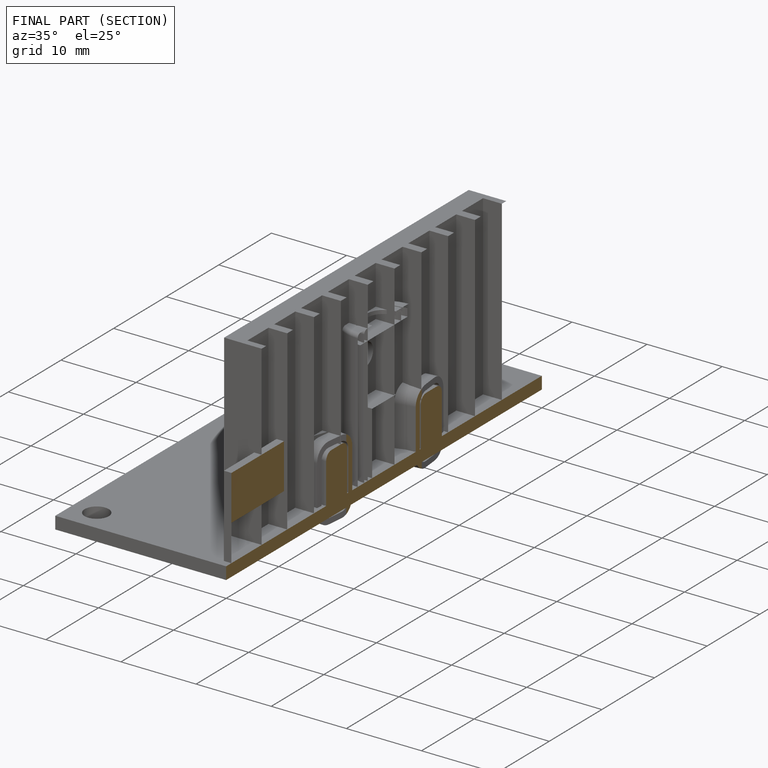
[diagram: finished part — half-section view (interior)]
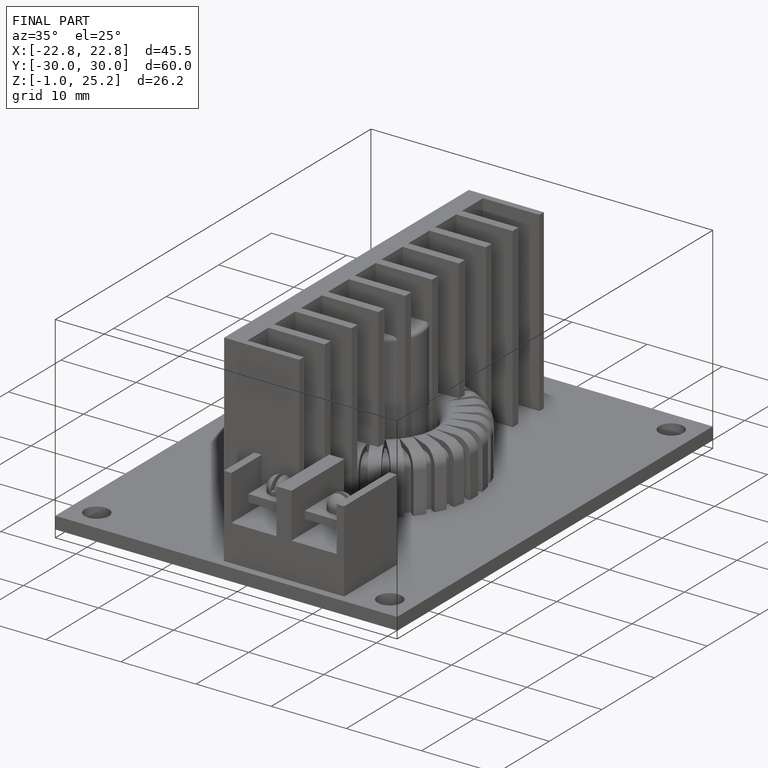
[diagram: finished part — iso view with bounding-box wireframe]
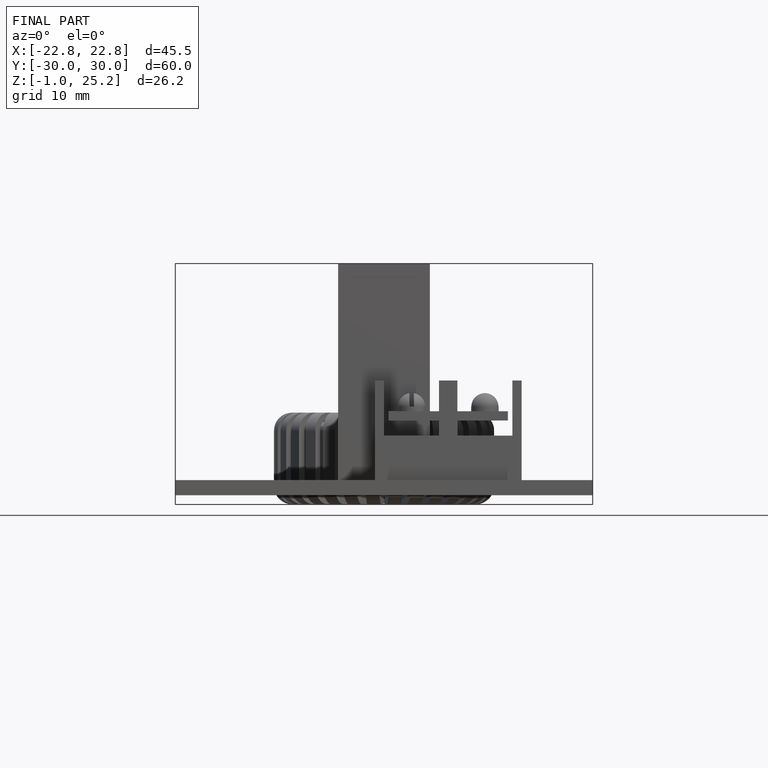
[diagram: finished part — front view with bounding-box wireframe]
